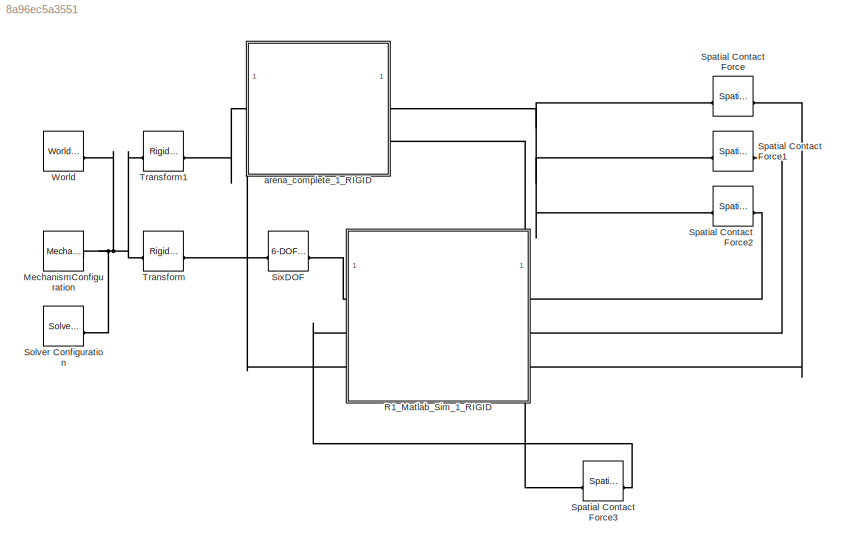
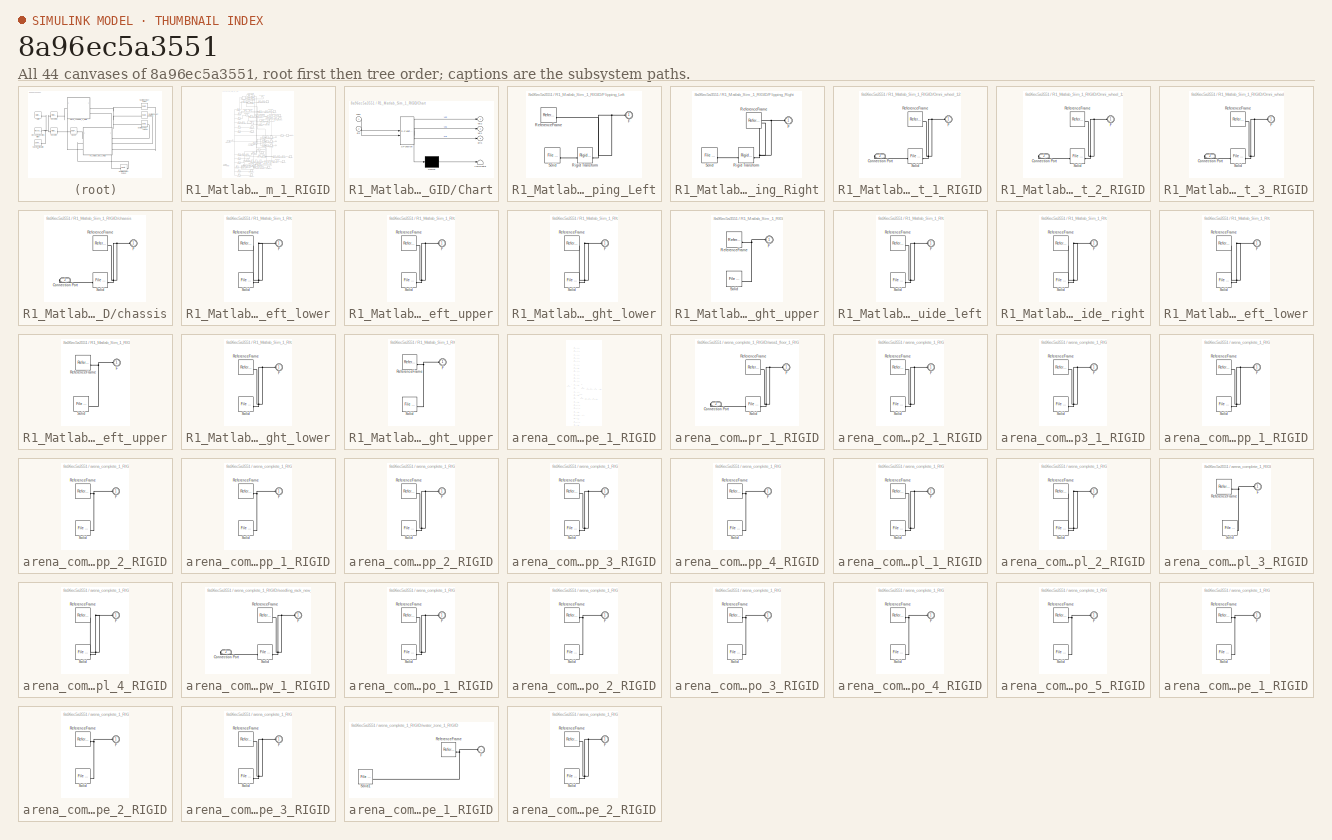
[diagram: thumbnail index - all 44 canvases of the model, root first then tree order]
MODEL slx_8a96ec5a3551
KIND model
CONFIG AbsTol = auto
CONFIG EnableMultiTasking = off
CONFIG FixedStep = auto
CONFIG MaxStep = auto
CONFIG MinStep = auto
CONFIG RelTol = 1e-3
CONFIG SampleTimeConstraint = Unconstrained
CONFIG SolverName = VariableStepAuto
CONFIG StartTime = 0.0
CONFIG StopTime = 10.0
WORKSPACE source: external: MATLAB File  (data not in archive)
BLOCK [Reference] MechanismConfiguration  REF=sm_lib/Utilities/Mechanism
Configuration
  SourceBlock = sm_lib/Utilities/Mechanism\nConfiguration
  SourceType = Mechanism\nConfiguration
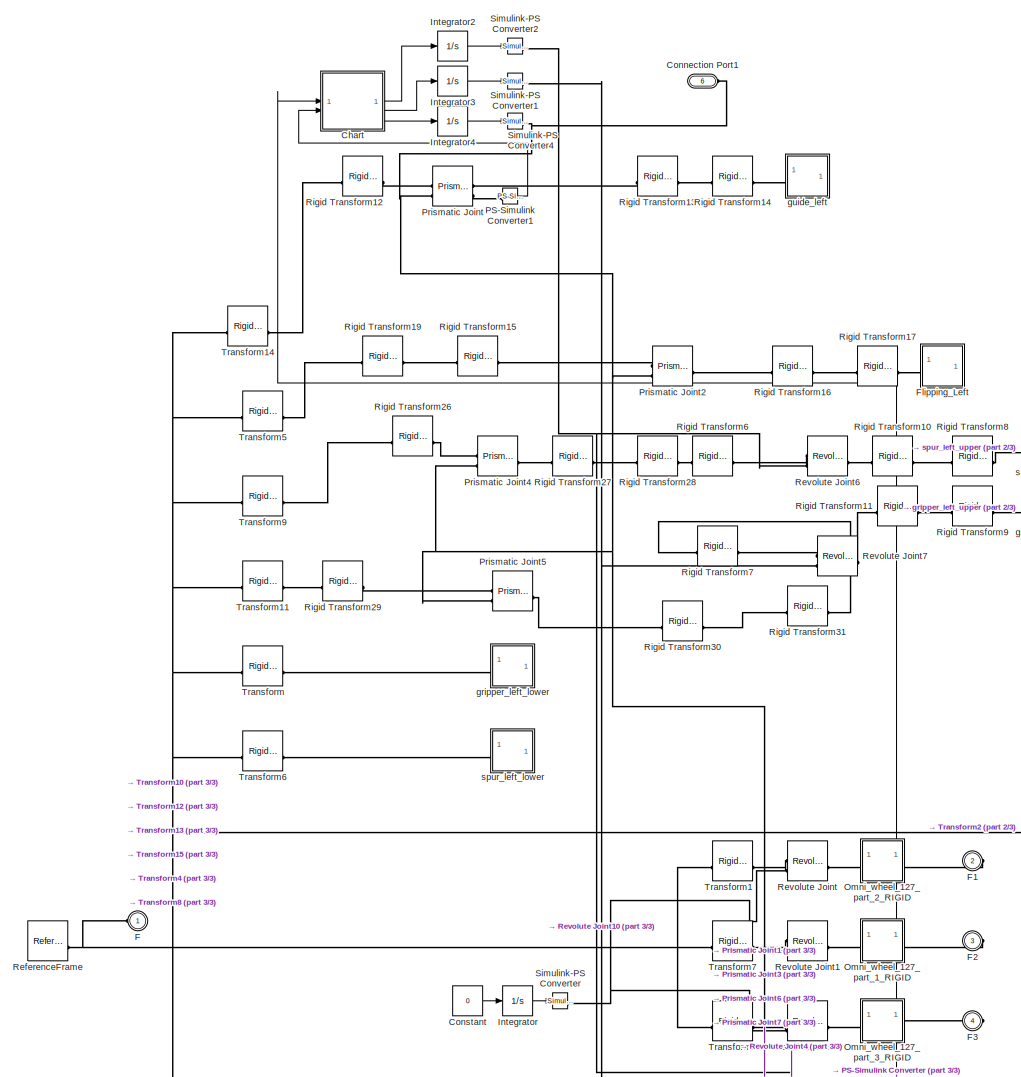
[diagram: R1_Matlab_Sim_1_RIGID - part 1/3, full width, middle band]
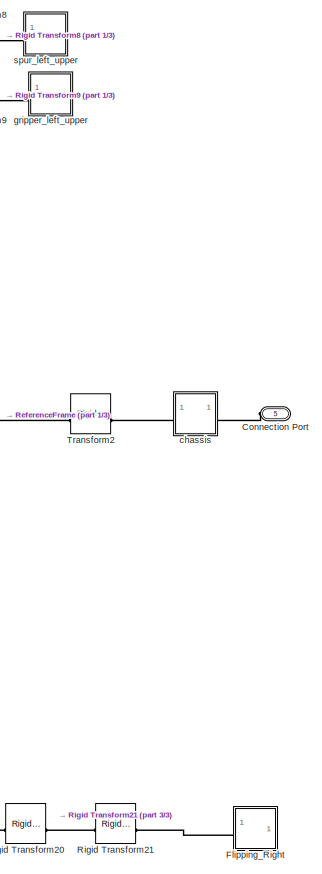
[diagram: R1_Matlab_Sim_1_RIGID - part 2/3, middle right region]
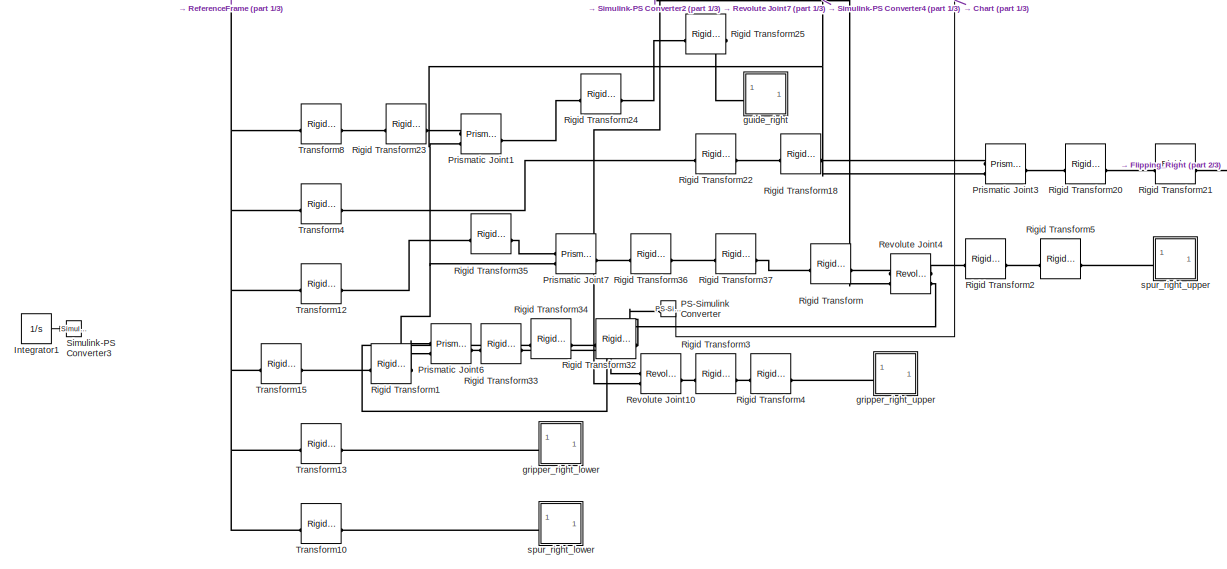
[diagram: R1_Matlab_Sim_1_RIGID - part 3/3, full width, bottom band]
BLOCK [SubSystem] R1_Matlab_Sim_1_RIGID
BLOCK [SubSystem] R1_Matlab_Sim_1_RIGID/Chart
  ErrorFcn = Stateflow.Translate.translate
  PermitHierarchicalResolution = ExplicitOnly
  SFBlockType = Chart
  TreatAsAtomicUnit = on
BLOCK [Demux] R1_Matlab_Sim_1_RIGID/Chart/ Demux 
  Outputs = 1
BLOCK [S-Function] R1_Matlab_Sim_1_RIGID/Chart/ SFunction 
  EnableBusSupport = on
  FunctionName = sf_sfun
  PortCounts = [2 4]
  SFcnIsStateOwnerBlock = off
  SFunctionDeploymentMode = off
  Tag = Stateflow S-Function 3
BLOCK [Terminator] R1_Matlab_Sim_1_RIGID/Chart/ Terminator 
BLOCK [Inport] R1_Matlab_Sim_1_RIGID/Chart/con1
BLOCK [Inport] R1_Matlab_Sim_1_RIGID/Chart/dis
  Port = 2
BLOCK [Outport] R1_Matlab_Sim_1_RIGID/Chart/pris
  Port = 3
BLOCK [Outport] R1_Matlab_Sim_1_RIGID/Chart/vel1
  Port = 2
BLOCK [Outport] R1_Matlab_Sim_1_RIGID/Chart/vel2
BLOCK [PMIOPort] R1_Matlab_Sim_1_RIGID/Connection Port
  Port = 5
  Side = Left
BLOCK [PMIOPort] R1_Matlab_Sim_1_RIGID/Connection Port1
  Port = 6
  Side = Left
BLOCK [Constant] R1_Matlab_Sim_1_RIGID/Constant
  Value = 0
BLOCK [PMIOPort] R1_Matlab_Sim_1_RIGID/F
  Side = Left
BLOCK [PMIOPort] R1_Matlab_Sim_1_RIGID/F1
  Port = 2
  Side = Right
BLOCK [PMIOPort] R1_Matlab_Sim_1_RIGID/F2
  Port = 3
  Side = Right
BLOCK [PMIOPort] R1_Matlab_Sim_1_RIGID/F3
  Port = 4
  Side = Right
BLOCK [SubSystem] R1_Matlab_Sim_1_RIGID/Flipping_Left
BLOCK [PMIOPort] R1_Matlab_Sim_1_RIGID/Flipping_Left/F
  Side = Left
BLOCK [Reference] R1_Matlab_Sim_1_RIGID/Flipping_Left/ReferenceFrame  REF=sm_lib/Frames and
Transforms/Reference
Frame
  SourceBlock = sm_lib/Frames and\nTransforms/Reference\nFrame
  SourceType = Reference\nFrame
BLOCK [Reference] R1_Matlab_Sim_1_RIGID/Flipping_Left/Rigid Transform  REF=sm_lib/Frames and
Transforms/Rigid
Transform
  SourceBlock = sm_lib/Frames and\nTransforms/Rigid\nTransform
  SourceType = Rigid\nTransform
BLOCK [Reference] R1_Matlab_Sim_1_RIGID/Flipping_Left/Solid  REF=sm_lib/Body Elements/File Solid
  SourceBlock = sm_lib/Body Elements/File Solid
  SourceType = File Solid
BLOCK [SubSystem] R1_Matlab_Sim_1_RIGID/Flipping_Right
BLOCK [PMIOPort] R1_Matlab_Sim_1_RIGID/Flipping_Right/F
  Side = Left
BLOCK [Reference] R1_Matlab_Sim_1_RIGID/Flipping_Right/ReferenceFrame  REF=sm_lib/Frames and
Transforms/Reference
Frame
  SourceBlock = sm_lib/Frames and\nTransforms/Reference\nFrame
  SourceType = Reference\nFrame
BLOCK [Reference] R1_Matlab_Sim_1_RIGID/Flipping_Right/Rigid Transform  REF=sm_lib/Frames and
Transforms/Rigid
Transform
  SourceBlock = sm_lib/Frames and\nTransforms/Rigid\nTransform
  SourceType = Rigid\nTransform
BLOCK [Reference] R1_Matlab_Sim_1_RIGID/Flipping_Right/Solid  REF=sm_lib/Body Elements/File Solid
  SourceBlock = sm_lib/Body Elements/File Solid
  SourceType = File Solid
BLOCK [Integrator] R1_Matlab_Sim_1_RIGID/Integrator
BLOCK [Integrator] R1_Matlab_Sim_1_RIGID/Integrator1
  Commented = on
BLOCK [Integrator] R1_Matlab_Sim_1_RIGID/Integrator2
BLOCK [Integrator] R1_Matlab_Sim_1_RIGID/Integrator3
BLOCK [Integrator] R1_Matlab_Sim_1_RIGID/Integrator4
BLOCK [SubSystem] R1_Matlab_Sim_1_RIGID/Omni_wheel_127_part_1_RIGID
BLOCK [PMIOPort] R1_Matlab_Sim_1_RIGID/Omni_wheel_127_part_1_RIGID/Connection Port
  Port = 2
  Side = Right
BLOCK [PMIOPort] R1_Matlab_Sim_1_RIGID/Omni_wheel_127_part_1_RIGID/F
  Side = Left
BLOCK [Reference] R1_Matlab_Sim_1_RIGID/Omni_wheel_127_part_1_RIGID/ReferenceFrame  REF=sm_lib/Frames and
Transforms/Reference
Frame
  SourceBlock = sm_lib/Frames and\nTransforms/Reference\nFrame
  SourceType = Reference\nFrame
BLOCK [Reference] R1_Matlab_Sim_1_RIGID/Omni_wheel_127_part_1_RIGID/Solid  REF=sm_lib/Body Elements/File Solid
  SourceBlock = sm_lib/Body Elements/File Solid
  SourceType = File Solid
BLOCK [SubSystem] R1_Matlab_Sim_1_RIGID/Omni_wheel_127_part_2_RIGID
BLOCK [PMIOPort] R1_Matlab_Sim_1_RIGID/Omni_wheel_127_part_2_RIGID/Connection Port
  Port = 2
  Side = Right
BLOCK [PMIOPort] R1_Matlab_Sim_1_RIGID/Omni_wheel_127_part_2_RIGID/F
  Side = Left
BLOCK [Reference] R1_Matlab_Sim_1_RIGID/Omni_wheel_127_part_2_RIGID/ReferenceFrame  REF=sm_lib/Frames and
Transforms/Reference
Frame
  SourceBlock = sm_lib/Frames and\nTransforms/Reference\nFrame
  SourceType = Reference\nFrame
BLOCK [Reference] R1_Matlab_Sim_1_RIGID/Omni_wheel_127_part_2_RIGID/Solid  REF=sm_lib/Body Elements/File Solid
  SourceBlock = sm_lib/Body Elements/File Solid
  SourceType = File Solid
BLOCK [SubSystem] R1_Matlab_Sim_1_RIGID/Omni_wheel_127_part_3_RIGID
BLOCK [PMIOPort] R1_Matlab_Sim_1_RIGID/Omni_wheel_127_part_3_RIGID/Connection Port
  Port = 2
  Side = Right
BLOCK [PMIOPort] R1_Matlab_Sim_1_RIGID/Omni_wheel_127_part_3_RIGID/F
  Side = Left
BLOCK [Reference] R1_Matlab_Sim_1_RIGID/Omni_wheel_127_part_3_RIGID/ReferenceFrame  REF=sm_lib/Frames and
Transforms/Reference
Frame
  SourceBlock = sm_lib/Frames and\nTransforms/Reference\nFrame
  SourceType = Reference\nFrame
BLOCK [Reference] R1_Matlab_Sim_1_RIGID/Omni_wheel_127_part_3_RIGID/Solid  REF=sm_lib/Body Elements/File Solid
  SourceBlock = sm_lib/Body Elements/File Solid
  SourceType = File Solid
BLOCK [Reference] R1_Matlab_Sim_1_RIGID/PS-Simulink Converter  REF=nesl_utility/PS-Simulink
Converter
  SourceBlock = nesl_utility/PS-Simulink\nConverter
  SourceType = PS-Simulink\nConverter
BLOCK [Reference] R1_Matlab_Sim_1_RIGID/PS-Simulink Converter1  REF=nesl_utility/PS-Simulink
Converter
  SourceBlock = nesl_utility/PS-Simulink\nConverter
  SourceType = PS-Simulink\nConverter
BLOCK [Reference] R1_Matlab_Sim_1_RIGID/Prismatic Joint  REF=sm_lib/Joints/Prismatic
Joint
  SourceBlock = sm_lib/Joints/Prismatic\nJoint
  SourceType = Prismatic\nJoint
BLOCK [Reference] R1_Matlab_Sim_1_RIGID/Prismatic Joint1  REF=sm_lib/Joints/Prismatic
Joint
  SourceBlock = sm_lib/Joints/Prismatic\nJoint
  SourceType = Prismatic\nJoint
BLOCK [Reference] R1_Matlab_Sim_1_RIGID/Prismatic Joint2  REF=sm_lib/Joints/Prismatic
Joint
  SourceBlock = sm_lib/Joints/Prismatic\nJoint
  SourceType = Prismatic\nJoint
BLOCK [Reference] R1_Matlab_Sim_1_RIGID/Prismatic Joint3  REF=sm_lib/Joints/Prismatic
Joint
  SourceBlock = sm_lib/Joints/Prismatic\nJoint
  SourceType = Prismatic\nJoint
BLOCK [Reference] R1_Matlab_Sim_1_RIGID/Prismatic Joint4  REF=sm_lib/Joints/Prismatic
Joint
  SourceBlock = sm_lib/Joints/Prismatic\nJoint
  SourceType = Prismatic\nJoint
BLOCK [Reference] R1_Matlab_Sim_1_RIGID/Prismatic Joint5  REF=sm_lib/Joints/Prismatic
Joint
  SourceBlock = sm_lib/Joints/Prismatic\nJoint
  SourceType = Prismatic\nJoint
BLOCK [Reference] R1_Matlab_Sim_1_RIGID/Prismatic Joint6  REF=sm_lib/Joints/Prismatic
Joint
  SourceBlock = sm_lib/Joints/Prismatic\nJoint
  SourceType = Prismatic\nJoint
BLOCK [Reference] R1_Matlab_Sim_1_RIGID/Prismatic Joint7  REF=sm_lib/Joints/Prismatic
Joint
  NameLocation = left
  SourceBlock = sm_lib/Joints/Prismatic\nJoint
  SourceType = Prismatic\nJoint
BLOCK [Reference] R1_Matlab_Sim_1_RIGID/ReferenceFrame  REF=sm_lib/Frames and
Transforms/Reference
Frame
  SourceBlock = sm_lib/Frames and\nTransforms/Reference\nFrame
  SourceType = Reference\nFrame
BLOCK [Reference] R1_Matlab_Sim_1_RIGID/Revolute Joint  REF=sm_lib/Joints/Revolute Joint
  SourceBlock = sm_lib/Joints/Revolute Joint
  SourceType = Revolute Joint
BLOCK [Reference] R1_Matlab_Sim_1_RIGID/Revolute Joint1  REF=sm_lib/Joints/Revolute Joint
  SourceBlock = sm_lib/Joints/Revolute Joint
  SourceType = Revolute Joint
BLOCK [Reference] R1_Matlab_Sim_1_RIGID/Revolute Joint10  REF=sm_lib/Joints/Revolute Joint
  SourceBlock = sm_lib/Joints/Revolute Joint
  SourceType = Revolute Joint
BLOCK [Reference] R1_Matlab_Sim_1_RIGID/Revolute Joint2  REF=sm_lib/Joints/Revolute Joint
  SourceBlock = sm_lib/Joints/Revolute Joint
  SourceType = Revolute Joint
BLOCK [Reference] R1_Matlab_Sim_1_RIGID/Revolute Joint4  REF=sm_lib/Joints/Revolute Joint
  SourceBlock = sm_lib/Joints/Revolute Joint
  SourceType = Revolute Joint
BLOCK [Reference] R1_Matlab_Sim_1_RIGID/Revolute Joint6  REF=sm_lib/Joints/Revolute Joint
  SourceBlock = sm_lib/Joints/Revolute Joint
  SourceType = Revolute Joint
BLOCK [Reference] R1_Matlab_Sim_1_RIGID/Revolute Joint7  REF=sm_lib/Joints/Revolute Joint
  SourceBlock = sm_lib/Joints/Revolute Joint
  SourceType = Revolute Joint
BLOCK [Reference] R1_Matlab_Sim_1_RIGID/Rigid Transform  REF=sm_lib/Frames and
Transforms/Rigid
Transform
  SourceBlock = sm_lib/Frames and\nTransforms/Rigid\nTransform
  SourceType = Rigid\nTransform
BLOCK [Reference] R1_Matlab_Sim_1_RIGID/Rigid Transform1  REF=sm_lib/Frames and
Transforms/Rigid
Transform
  SourceBlock = sm_lib/Frames and\nTransforms/Rigid\nTransform
  SourceType = Rigid\nTransform
BLOCK [Reference] R1_Matlab_Sim_1_RIGID/Rigid Transform10  REF=sm_lib/Frames and
Transforms/Rigid
Transform
  SourceBlock = sm_lib/Frames and\nTransforms/Rigid\nTransform
  SourceType = Rigid\nTransform
BLOCK [Reference] R1_Matlab_Sim_1_RIGID/Rigid Transform11  REF=sm_lib/Frames and
Transforms/Rigid
Transform
  SourceBlock = sm_lib/Frames and\nTransforms/Rigid\nTransform
  SourceType = Rigid\nTransform
BLOCK [Reference] R1_Matlab_Sim_1_RIGID/Rigid Transform12  REF=sm_lib/Frames and
Transforms/Rigid
Transform
  SourceBlock = sm_lib/Frames and\nTransforms/Rigid\nTransform
  SourceType = Rigid\nTransform
BLOCK [Reference] R1_Matlab_Sim_1_RIGID/Rigid Transform13  REF=sm_lib/Frames and
Transforms/Rigid
Transform
  SourceBlock = sm_lib/Frames and\nTransforms/Rigid\nTransform
  SourceType = Rigid\nTransform
BLOCK [Reference] R1_Matlab_Sim_1_RIGID/Rigid Transform14  REF=sm_lib/Frames and
Transforms/Rigid
Transform
  SourceBlock = sm_lib/Frames and\nTransforms/Rigid\nTransform
  SourceType = Rigid\nTransform
BLOCK [Reference] R1_Matlab_Sim_1_RIGID/Rigid Transform15  REF=sm_lib/Frames and
Transforms/Rigid
Transform
  SourceBlock = sm_lib/Frames and\nTransforms/Rigid\nTransform
  SourceType = Rigid\nTransform
BLOCK [Reference] R1_Matlab_Sim_1_RIGID/Rigid Transform16  REF=sm_lib/Frames and
Transforms/Rigid
Transform
  SourceBlock = sm_lib/Frames and\nTransforms/Rigid\nTransform
  SourceType = Rigid\nTransform
BLOCK [Reference] R1_Matlab_Sim_1_RIGID/Rigid Transform17  REF=sm_lib/Frames and
Transforms/Rigid
Transform
  SourceBlock = sm_lib/Frames and\nTransforms/Rigid\nTransform
  SourceType = Rigid\nTransform
BLOCK [Reference] R1_Matlab_Sim_1_RIGID/Rigid Transform18  REF=sm_lib/Frames and
Transforms/Rigid
Transform
  SourceBlock = sm_lib/Frames and\nTransforms/Rigid\nTransform
  SourceType = Rigid\nTransform
BLOCK [Reference] R1_Matlab_Sim_1_RIGID/Rigid Transform19  REF=sm_lib/Frames and
Transforms/Rigid
Transform
  SourceBlock = sm_lib/Frames and\nTransforms/Rigid\nTransform
  SourceType = Rigid\nTransform
BLOCK [Reference] R1_Matlab_Sim_1_RIGID/Rigid Transform2  REF=sm_lib/Frames and
Transforms/Rigid
Transform
  SourceBlock = sm_lib/Frames and\nTransforms/Rigid\nTransform
  SourceType = Rigid\nTransform
BLOCK [Reference] R1_Matlab_Sim_1_RIGID/Rigid Transform20  REF=sm_lib/Frames and
Transforms/Rigid
Transform
  SourceBlock = sm_lib/Frames and\nTransforms/Rigid\nTransform
  SourceType = Rigid\nTransform
BLOCK [Reference] R1_Matlab_Sim_1_RIGID/Rigid Transform21  REF=sm_lib/Frames and
Transforms/Rigid
Transform
  SourceBlock = sm_lib/Frames and\nTransforms/Rigid\nTransform
  SourceType = Rigid\nTransform
BLOCK [Reference] R1_Matlab_Sim_1_RIGID/Rigid Transform22  REF=sm_lib/Frames and
Transforms/Rigid
Transform
  SourceBlock = sm_lib/Frames and\nTransforms/Rigid\nTransform
  SourceType = Rigid\nTransform
BLOCK [Reference] R1_Matlab_Sim_1_RIGID/Rigid Transform23  REF=sm_lib/Frames and
Transforms/Rigid
Transform
  SourceBlock = sm_lib/Frames and\nTransforms/Rigid\nTransform
  SourceType = Rigid\nTransform
BLOCK [Reference] R1_Matlab_Sim_1_RIGID/Rigid Transform24  REF=sm_lib/Frames and
Transforms/Rigid
Transform
  SourceBlock = sm_lib/Frames and\nTransforms/Rigid\nTransform
  SourceType = Rigid\nTransform
BLOCK [Reference] R1_Matlab_Sim_1_RIGID/Rigid Transform25  REF=sm_lib/Frames and
Transforms/Rigid
Transform
  SourceBlock = sm_lib/Frames and\nTransforms/Rigid\nTransform
  SourceType = Rigid\nTransform
BLOCK [Reference] R1_Matlab_Sim_1_RIGID/Rigid Transform26  REF=sm_lib/Frames and
Transforms/Rigid
Transform
  SourceBlock = sm_lib/Frames and\nTransforms/Rigid\nTransform
  SourceType = Rigid\nTransform
BLOCK [Reference] R1_Matlab_Sim_1_RIGID/Rigid Transform27  REF=sm_lib/Frames and
Transforms/Rigid
Transform
  SourceBlock = sm_lib/Frames and\nTransforms/Rigid\nTransform
  SourceType = Rigid\nTransform
BLOCK [Reference] R1_Matlab_Sim_1_RIGID/Rigid Transform28  REF=sm_lib/Frames and
Transforms/Rigid
Transform
  SourceBlock = sm_lib/Frames and\nTransforms/Rigid\nTransform
  SourceType = Rigid\nTransform
BLOCK [Reference] R1_Matlab_Sim_1_RIGID/Rigid Transform29  REF=sm_lib/Frames and
Transforms/Rigid
Transform
  SourceBlock = sm_lib/Frames and\nTransforms/Rigid\nTransform
  SourceType = Rigid\nTransform
BLOCK [Reference] R1_Matlab_Sim_1_RIGID/Rigid Transform3  REF=sm_lib/Frames and
Transforms/Rigid
Transform
  SourceBlock = sm_lib/Frames and\nTransforms/Rigid\nTransform
  SourceType = Rigid\nTransform
BLOCK [Reference] R1_Matlab_Sim_1_RIGID/Rigid Transform30  REF=sm_lib/Frames and
Transforms/Rigid
Transform
  SourceBlock = sm_lib/Frames and\nTransforms/Rigid\nTransform
  SourceType = Rigid\nTransform
BLOCK [Reference] R1_Matlab_Sim_1_RIGID/Rigid Transform31  REF=sm_lib/Frames and
Transforms/Rigid
Transform
  SourceBlock = sm_lib/Frames and\nTransforms/Rigid\nTransform
  SourceType = Rigid\nTransform
BLOCK [Reference] R1_Matlab_Sim_1_RIGID/Rigid Transform32  REF=sm_lib/Frames and
Transforms/Rigid
Transform
  SourceBlock = sm_lib/Frames and\nTransforms/Rigid\nTransform
  SourceType = Rigid\nTransform
BLOCK [Reference] R1_Matlab_Sim_1_RIGID/Rigid Transform33  REF=sm_lib/Frames and
Transforms/Rigid
Transform
  SourceBlock = sm_lib/Frames and\nTransforms/Rigid\nTransform
  SourceType = Rigid\nTransform
BLOCK [Reference] R1_Matlab_Sim_1_RIGID/Rigid Transform34  REF=sm_lib/Frames and
Transforms/Rigid
Transform
  SourceBlock = sm_lib/Frames and\nTransforms/Rigid\nTransform
  SourceType = Rigid\nTransform
BLOCK [Reference] R1_Matlab_Sim_1_RIGID/Rigid Transform35  REF=sm_lib/Frames and
Transforms/Rigid
Transform
  SourceBlock = sm_lib/Frames and\nTransforms/Rigid\nTransform
  SourceType = Rigid\nTransform
BLOCK [Reference] R1_Matlab_Sim_1_RIGID/Rigid Transform36  REF=sm_lib/Frames and
Transforms/Rigid
Transform
  SourceBlock = sm_lib/Frames and\nTransforms/Rigid\nTransform
  SourceType = Rigid\nTransform
BLOCK [Reference] R1_Matlab_Sim_1_RIGID/Rigid Transform37  REF=sm_lib/Frames and
Transforms/Rigid
Transform
  SourceBlock = sm_lib/Frames and\nTransforms/Rigid\nTransform
  SourceType = Rigid\nTransform
BLOCK [Reference] R1_Matlab_Sim_1_RIGID/Rigid Transform4  REF=sm_lib/Frames and
Transforms/Rigid
Transform
  SourceBlock = sm_lib/Frames and\nTransforms/Rigid\nTransform
  SourceType = Rigid\nTransform
BLOCK [Reference] R1_Matlab_Sim_1_RIGID/Rigid Transform5  REF=sm_lib/Frames and
Transforms/Rigid
Transform
  SourceBlock = sm_lib/Frames and\nTransforms/Rigid\nTransform
  SourceType = Rigid\nTransform
BLOCK [Reference] R1_Matlab_Sim_1_RIGID/Rigid Transform6  REF=sm_lib/Frames and
Transforms/Rigid
Transform
  SourceBlock = sm_lib/Frames and\nTransforms/Rigid\nTransform
  SourceType = Rigid\nTransform
BLOCK [Reference] R1_Matlab_Sim_1_RIGID/Rigid Transform7  REF=sm_lib/Frames and
Transforms/Rigid
Transform
  SourceBlock = sm_lib/Frames and\nTransforms/Rigid\nTransform
  SourceType = Rigid\nTransform
BLOCK [Reference] R1_Matlab_Sim_1_RIGID/Rigid Transform8  REF=sm_lib/Frames and
Transforms/Rigid
Transform
  SourceBlock = sm_lib/Frames and\nTransforms/Rigid\nTransform
  SourceType = Rigid\nTransform
BLOCK [Reference] R1_Matlab_Sim_1_RIGID/Rigid Transform9  REF=sm_lib/Frames and
Transforms/Rigid
Transform
  SourceBlock = sm_lib/Frames and\nTransforms/Rigid\nTransform
  SourceType = Rigid\nTransform
BLOCK [Reference] R1_Matlab_Sim_1_RIGID/Simulink-PS Converter  REF=nesl_utility/Simulink-PS
Converter
  SourceBlock = nesl_utility/Simulink-PS\nConverter
  SourceType = Simulink-PS\nConverter
BLOCK [Reference] R1_Matlab_Sim_1_RIGID/Simulink-PS Converter1  REF=nesl_utility/Simulink-PS
Converter
  SourceBlock = nesl_utility/Simulink-PS\nConverter
  SourceType = Simulink-PS\nConverter
BLOCK [Reference] R1_Matlab_Sim_1_RIGID/Simulink-PS Converter2  REF=nesl_utility/Simulink-PS
Converter
  SourceBlock = nesl_utility/Simulink-PS\nConverter
  SourceType = Simulink-PS\nConverter
BLOCK [Reference] R1_Matlab_Sim_1_RIGID/Simulink-PS Converter3  REF=nesl_utility/Simulink-PS
Converter
  Commented = on
  SourceBlock = nesl_utility/Simulink-PS\nConverter
  SourceType = Simulink-PS\nConverter
BLOCK [Reference] R1_Matlab_Sim_1_RIGID/Simulink-PS Converter4  REF=nesl_utility/Simulink-PS
Converter
  SourceBlock = nesl_utility/Simulink-PS\nConverter
  SourceType = Simulink-PS\nConverter
BLOCK [Reference] R1_Matlab_Sim_1_RIGID/Transform  REF=sm_lib/Frames and
Transforms/Rigid
Transform
  SourceBlock = sm_lib/Frames and\nTransforms/Rigid\nTransform
  SourceType = Rigid\nTransform
BLOCK [Reference] R1_Matlab_Sim_1_RIGID/Transform1  REF=sm_lib/Frames and
Transforms/Rigid
Transform
  SourceBlock = sm_lib/Frames and\nTransforms/Rigid\nTransform
  SourceType = Rigid\nTransform
BLOCK [Reference] R1_Matlab_Sim_1_RIGID/Transform10  REF=sm_lib/Frames and
Transforms/Rigid
Transform
  SourceBlock = sm_lib/Frames and\nTransforms/Rigid\nTransform
  SourceType = Rigid\nTransform
BLOCK [Reference] R1_Matlab_Sim_1_RIGID/Transform11  REF=sm_lib/Frames and
Transforms/Rigid
Transform
  SourceBlock = sm_lib/Frames and\nTransforms/Rigid\nTransform
  SourceType = Rigid\nTransform
BLOCK [Reference] R1_Matlab_Sim_1_RIGID/Transform12  REF=sm_lib/Frames and
Transforms/Rigid
Transform
  SourceBlock = sm_lib/Frames and\nTransforms/Rigid\nTransform
  SourceType = Rigid\nTransform
BLOCK [Reference] R1_Matlab_Sim_1_RIGID/Transform13  REF=sm_lib/Frames and
Transforms/Rigid
Transform
  SourceBlock = sm_lib/Frames and\nTransforms/Rigid\nTransform
  SourceType = Rigid\nTransform
BLOCK [Reference] R1_Matlab_Sim_1_RIGID/Transform14  REF=sm_lib/Frames and
Transforms/Rigid
Transform
  SourceBlock = sm_lib/Frames and\nTransforms/Rigid\nTransform
  SourceType = Rigid\nTransform
BLOCK [Reference] R1_Matlab_Sim_1_RIGID/Transform15  REF=sm_lib/Frames and
Transforms/Rigid
Transform
  SourceBlock = sm_lib/Frames and\nTransforms/Rigid\nTransform
  SourceType = Rigid\nTransform
BLOCK [Reference] R1_Matlab_Sim_1_RIGID/Transform2  REF=sm_lib/Frames and
Transforms/Rigid
Transform
  SourceBlock = sm_lib/Frames and\nTransforms/Rigid\nTransform
  SourceType = Rigid\nTransform
BLOCK [Reference] R1_Matlab_Sim_1_RIGID/Transform3  REF=sm_lib/Frames and
Transforms/Rigid
Transform
  SourceBlock = sm_lib/Frames and\nTransforms/Rigid\nTransform
  SourceType = Rigid\nTransform
BLOCK [Reference] R1_Matlab_Sim_1_RIGID/Transform4  REF=sm_lib/Frames and
Transforms/Rigid
Transform
  SourceBlock = sm_lib/Frames and\nTransforms/Rigid\nTransform
  SourceType = Rigid\nTransform
BLOCK [Reference] R1_Matlab_Sim_1_RIGID/Transform5  REF=sm_lib/Frames and
Transforms/Rigid
Transform
  SourceBlock = sm_lib/Frames and\nTransforms/Rigid\nTransform
  SourceType = Rigid\nTransform
BLOCK [Reference] R1_Matlab_Sim_1_RIGID/Transform6  REF=sm_lib/Frames and
Transforms/Rigid
Transform
  SourceBlock = sm_lib/Frames and\nTransforms/Rigid\nTransform
  SourceType = Rigid\nTransform
BLOCK [Reference] R1_Matlab_Sim_1_RIGID/Transform7  REF=sm_lib/Frames and
Transforms/Rigid
Transform
  SourceBlock = sm_lib/Frames and\nTransforms/Rigid\nTransform
  SourceType = Rigid\nTransform
BLOCK [Reference] R1_Matlab_Sim_1_RIGID/Transform8  REF=sm_lib/Frames and
Transforms/Rigid
Transform
  SourceBlock = sm_lib/Frames and\nTransforms/Rigid\nTransform
  SourceType = Rigid\nTransform
BLOCK [Reference] R1_Matlab_Sim_1_RIGID/Transform9  REF=sm_lib/Frames and
Transforms/Rigid
Transform
  SourceBlock = sm_lib/Frames and\nTransforms/Rigid\nTransform
  SourceType = Rigid\nTransform
BLOCK [SubSystem] R1_Matlab_Sim_1_RIGID/chassis
BLOCK [PMIOPort] R1_Matlab_Sim_1_RIGID/chassis/Connection Port
  Port = 2
  Side = Right
BLOCK [PMIOPort] R1_Matlab_Sim_1_RIGID/chassis/F
  Side = Left
BLOCK [Reference] R1_Matlab_Sim_1_RIGID/chassis/ReferenceFrame  REF=sm_lib/Frames and
Transforms/Reference
Frame
  SourceBlock = sm_lib/Frames and\nTransforms/Reference\nFrame
  SourceType = Reference\nFrame
BLOCK [Reference] R1_Matlab_Sim_1_RIGID/chassis/Solid  REF=sm_lib/Body Elements/File Solid
  SourceBlock = sm_lib/Body Elements/File Solid
  SourceType = File Solid
BLOCK [SubSystem] R1_Matlab_Sim_1_RIGID/gripper_left_lower
BLOCK [PMIOPort] R1_Matlab_Sim_1_RIGID/gripper_left_lower/F
  Side = Left
BLOCK [Reference] R1_Matlab_Sim_1_RIGID/gripper_left_lower/ReferenceFrame  REF=sm_lib/Frames and
Transforms/Reference
Frame
  SourceBlock = sm_lib/Frames and\nTransforms/Reference\nFrame
  SourceType = Reference\nFrame
BLOCK [Reference] R1_Matlab_Sim_1_RIGID/gripper_left_lower/Solid  REF=sm_lib/Body Elements/File Solid
  SourceBlock = sm_lib/Body Elements/File Solid
  SourceType = File Solid
BLOCK [SubSystem] R1_Matlab_Sim_1_RIGID/gripper_left_upper
BLOCK [PMIOPort] R1_Matlab_Sim_1_RIGID/gripper_left_upper/F
  Side = Left
BLOCK [Reference] R1_Matlab_Sim_1_RIGID/gripper_left_upper/ReferenceFrame  REF=sm_lib/Frames and
Transforms/Reference
Frame
  SourceBlock = sm_lib/Frames and\nTransforms/Reference\nFrame
  SourceType = Reference\nFrame
BLOCK [Reference] R1_Matlab_Sim_1_RIGID/gripper_left_upper/Solid  REF=sm_lib/Body Elements/File Solid
  SourceBlock = sm_lib/Body Elements/File Solid
  SourceType = File Solid
BLOCK [SubSystem] R1_Matlab_Sim_1_RIGID/gripper_right_lower
BLOCK [PMIOPort] R1_Matlab_Sim_1_RIGID/gripper_right_lower/F
  Side = Left
BLOCK [Reference] R1_Matlab_Sim_1_RIGID/gripper_right_lower/ReferenceFrame  REF=sm_lib/Frames and
Transforms/Reference
Frame
  SourceBlock = sm_lib/Frames and\nTransforms/Reference\nFrame
  SourceType = Reference\nFrame
BLOCK [Reference] R1_Matlab_Sim_1_RIGID/gripper_right_lower/Solid  REF=sm_lib/Body Elements/File Solid
  SourceBlock = sm_lib/Body Elements/File Solid
  SourceType = File Solid
BLOCK [SubSystem] R1_Matlab_Sim_1_RIGID/gripper_right_upper
BLOCK [PMIOPort] R1_Matlab_Sim_1_RIGID/gripper_right_upper/F
  Side = Left
BLOCK [Reference] R1_Matlab_Sim_1_RIGID/gripper_right_upper/ReferenceFrame  REF=sm_lib/Frames and
Transforms/Reference
Frame
  SourceBlock = sm_lib/Frames and\nTransforms/Reference\nFrame
  SourceType = Reference\nFrame
BLOCK [Reference] R1_Matlab_Sim_1_RIGID/gripper_right_upper/Solid  REF=sm_lib/Body Elements/File Solid
  SourceBlock = sm_lib/Body Elements/File Solid
  SourceType = File Solid
BLOCK [SubSystem] R1_Matlab_Sim_1_RIGID/guide_left
BLOCK [PMIOPort] R1_Matlab_Sim_1_RIGID/guide_left/F
  Side = Left
BLOCK [Reference] R1_Matlab_Sim_1_RIGID/guide_left/ReferenceFrame  REF=sm_lib/Frames and
Transforms/Reference
Frame
  SourceBlock = sm_lib/Frames and\nTransforms/Reference\nFrame
  SourceType = Reference\nFrame
BLOCK [Reference] R1_Matlab_Sim_1_RIGID/guide_left/Solid  REF=sm_lib/Body Elements/File Solid
  SourceBlock = sm_lib/Body Elements/File Solid
  SourceType = File Solid
BLOCK [SubSystem] R1_Matlab_Sim_1_RIGID/guide_right
BLOCK [PMIOPort] R1_Matlab_Sim_1_RIGID/guide_right/F
  Side = Left
BLOCK [Reference] R1_Matlab_Sim_1_RIGID/guide_right/ReferenceFrame  REF=sm_lib/Frames and
Transforms/Reference
Frame
  SourceBlock = sm_lib/Frames and\nTransforms/Reference\nFrame
  SourceType = Reference\nFrame
BLOCK [Reference] R1_Matlab_Sim_1_RIGID/guide_right/Solid  REF=sm_lib/Body Elements/File Solid
  SourceBlock = sm_lib/Body Elements/File Solid
  SourceType = File Solid
BLOCK [SubSystem] R1_Matlab_Sim_1_RIGID/spur_left_lower
BLOCK [PMIOPort] R1_Matlab_Sim_1_RIGID/spur_left_lower/F
  Side = Left
BLOCK [Reference] R1_Matlab_Sim_1_RIGID/spur_left_lower/ReferenceFrame  REF=sm_lib/Frames and
Transforms/Reference
Frame
  SourceBlock = sm_lib/Frames and\nTransforms/Reference\nFrame
  SourceType = Reference\nFrame
BLOCK [Reference] R1_Matlab_Sim_1_RIGID/spur_left_lower/Solid  REF=sm_lib/Body Elements/File Solid
  SourceBlock = sm_lib/Body Elements/File Solid
  SourceType = File Solid
BLOCK [SubSystem] R1_Matlab_Sim_1_RIGID/spur_left_upper
BLOCK [PMIOPort] R1_Matlab_Sim_1_RIGID/spur_left_upper/F
  Side = Left
BLOCK [Reference] R1_Matlab_Sim_1_RIGID/spur_left_upper/ReferenceFrame  REF=sm_lib/Frames and
Transforms/Reference
Frame
  SourceBlock = sm_lib/Frames and\nTransforms/Reference\nFrame
  SourceType = Reference\nFrame
BLOCK [Reference] R1_Matlab_Sim_1_RIGID/spur_left_upper/Solid  REF=sm_lib/Body Elements/File Solid
  SourceBlock = sm_lib/Body Elements/File Solid
  SourceType = File Solid
BLOCK [SubSystem] R1_Matlab_Sim_1_RIGID/spur_right_lower
BLOCK [PMIOPort] R1_Matlab_Sim_1_RIGID/spur_right_lower/F
  Side = Left
BLOCK [Reference] R1_Matlab_Sim_1_RIGID/spur_right_lower/ReferenceFrame  REF=sm_lib/Frames and
Transforms/Reference
Frame
  SourceBlock = sm_lib/Frames and\nTransforms/Reference\nFrame
  SourceType = Reference\nFrame
BLOCK [Reference] R1_Matlab_Sim_1_RIGID/spur_right_lower/Solid  REF=sm_lib/Body Elements/File Solid
  SourceBlock = sm_lib/Body Elements/File Solid
  SourceType = File Solid
BLOCK [SubSystem] R1_Matlab_Sim_1_RIGID/spur_right_upper
BLOCK [PMIOPort] R1_Matlab_Sim_1_RIGID/spur_right_upper/F
  Side = Left
BLOCK [Reference] R1_Matlab_Sim_1_RIGID/spur_right_upper/ReferenceFrame  REF=sm_lib/Frames and
Transforms/Reference
Frame
  SourceBlock = sm_lib/Frames and\nTransforms/Reference\nFrame
  SourceType = Reference\nFrame
BLOCK [Reference] R1_Matlab_Sim_1_RIGID/spur_right_upper/Solid  REF=sm_lib/Body Elements/File Solid
  SourceBlock = sm_lib/Body Elements/File Solid
  SourceType = File Solid
BLOCK [Reference] SixDOF  REF=sm_lib/Joints/6-DOF Joint
  SourceBlock = sm_lib/Joints/6-DOF Joint
  SourceType = 6-DOF Joint
BLOCK [Reference] Solver Configuration  REF=nesl_utility/Solver
Configuration
  SourceBlock = nesl_utility/Solver\nConfiguration
  SourceType = Solver\nConfiguration
BLOCK [Reference] Spatial Contact Force  REF=sm_lib/Forces and
Torques/Spatial
Contact Force
  SourceBlock = sm_lib/Forces and\nTorques/Spatial\nContact Force
  SourceType = Spatial\nContact Force
BLOCK [Reference] Spatial Contact Force1  REF=sm_lib/Forces and
Torques/Spatial
Contact Force
  SourceBlock = sm_lib/Forces and\nTorques/Spatial\nContact Force
  SourceType = Spatial\nContact Force
BLOCK [Reference] Spatial Contact Force2  REF=sm_lib/Forces and
Torques/Spatial
Contact Force
  SourceBlock = sm_lib/Forces and\nTorques/Spatial\nContact Force
  SourceType = Spatial\nContact Force
BLOCK [Reference] Spatial Contact Force3  REF=sm_lib/Forces and
Torques/Spatial
Contact Force
  SourceBlock = sm_lib/Forces and\nTorques/Spatial\nContact Force
  SourceType = Spatial\nContact Force
BLOCK [Reference] Transform  REF=sm_lib/Frames and
Transforms/Rigid
Transform
  SourceBlock = sm_lib/Frames and\nTransforms/Rigid\nTransform
  SourceType = Rigid\nTransform
BLOCK [Reference] Transform1  REF=sm_lib/Frames and
Transforms/Rigid
Transform
  SourceBlock = sm_lib/Frames and\nTransforms/Rigid\nTransform
  SourceType = Rigid\nTransform
BLOCK [Reference] World  REF=sm_lib/Frames and
Transforms/World Frame
  SourceBlock = sm_lib/Frames and\nTransforms/World Frame
  SourceType = World Frame
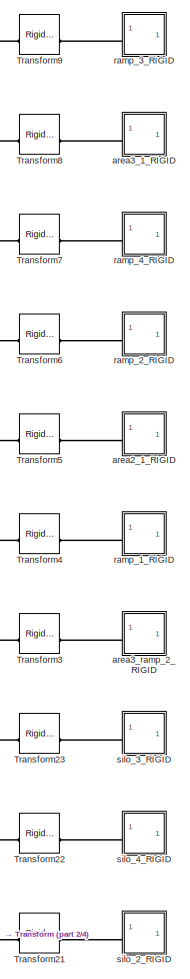
[diagram: arena_complete_1_RIGID - part 1/4, top left region]
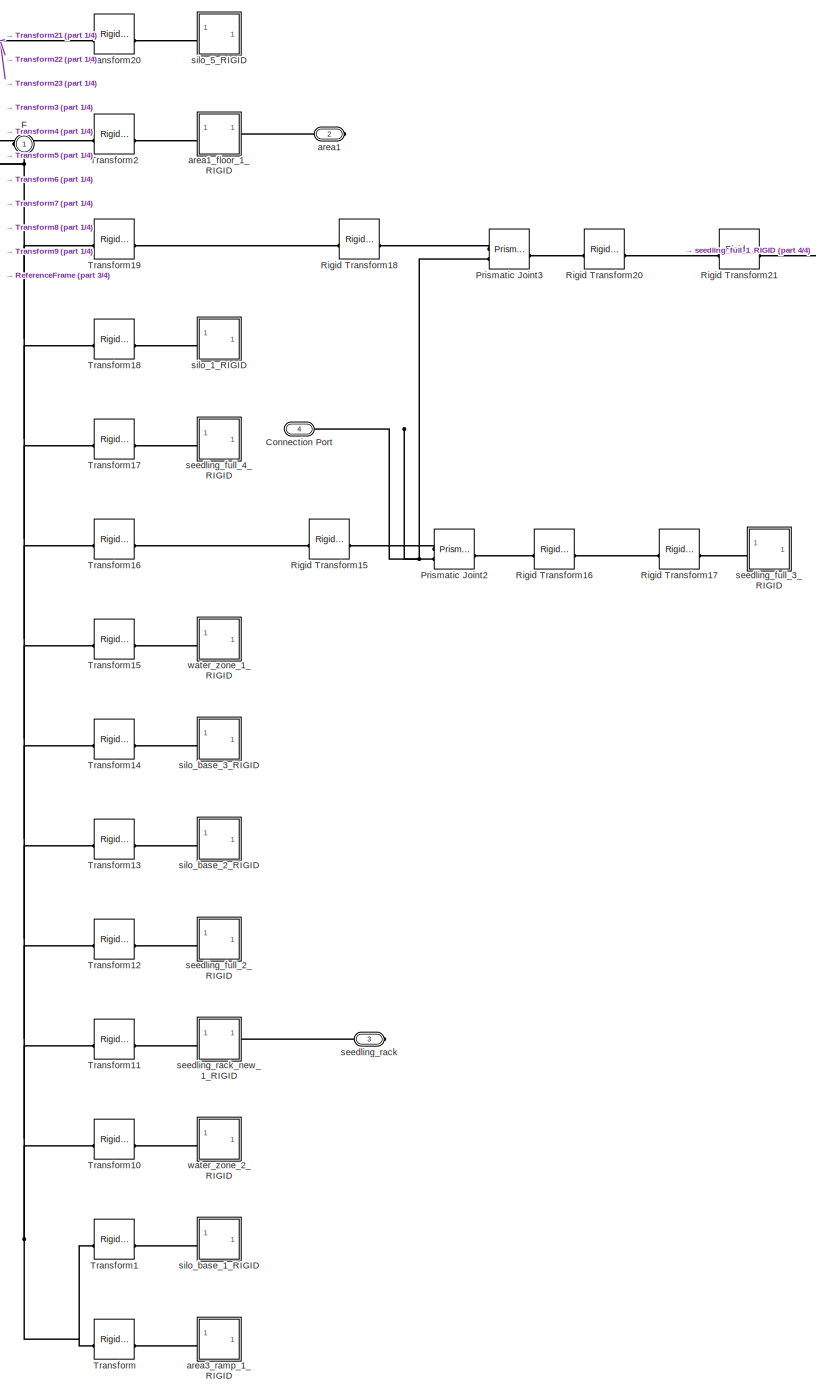
[diagram: arena_complete_1_RIGID - part 2/4, full width, bottom band]
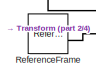
[diagram: arena_complete_1_RIGID - part 3/4, middle left region]
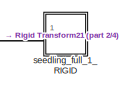
[diagram: arena_complete_1_RIGID - part 4/4, middle right region]
BLOCK [SubSystem] arena_complete_1_RIGID
BLOCK [PMIOPort] arena_complete_1_RIGID/Connection Port
  Port = 4
  Side = Left
BLOCK [PMIOPort] arena_complete_1_RIGID/F
  Side = Left
BLOCK [Reference] arena_complete_1_RIGID/Prismatic Joint2  REF=sm_lib/Joints/Prismatic
Joint
  SourceBlock = sm_lib/Joints/Prismatic\nJoint
  SourceType = Prismatic\nJoint
BLOCK [Reference] arena_complete_1_RIGID/Prismatic Joint3  REF=sm_lib/Joints/Prismatic
Joint
  SourceBlock = sm_lib/Joints/Prismatic\nJoint
  SourceType = Prismatic\nJoint
BLOCK [Reference] arena_complete_1_RIGID/ReferenceFrame  REF=sm_lib/Frames and
Transforms/Reference
Frame
  SourceBlock = sm_lib/Frames and\nTransforms/Reference\nFrame
  SourceType = Reference\nFrame
BLOCK [Reference] arena_complete_1_RIGID/Rigid Transform15  REF=sm_lib/Frames and
Transforms/Rigid
Transform
  SourceBlock = sm_lib/Frames and\nTransforms/Rigid\nTransform
  SourceType = Rigid\nTransform
BLOCK [Reference] arena_complete_1_RIGID/Rigid Transform16  REF=sm_lib/Frames and
Transforms/Rigid
Transform
  SourceBlock = sm_lib/Frames and\nTransforms/Rigid\nTransform
  SourceType = Rigid\nTransform
BLOCK [Reference] arena_complete_1_RIGID/Rigid Transform17  REF=sm_lib/Frames and
Transforms/Rigid
Transform
  SourceBlock = sm_lib/Frames and\nTransforms/Rigid\nTransform
  SourceType = Rigid\nTransform
BLOCK [Reference] arena_complete_1_RIGID/Rigid Transform18  REF=sm_lib/Frames and
Transforms/Rigid
Transform
  SourceBlock = sm_lib/Frames and\nTransforms/Rigid\nTransform
  SourceType = Rigid\nTransform
BLOCK [Reference] arena_complete_1_RIGID/Rigid Transform20  REF=sm_lib/Frames and
Transforms/Rigid
Transform
  SourceBlock = sm_lib/Frames and\nTransforms/Rigid\nTransform
  SourceType = Rigid\nTransform
BLOCK [Reference] arena_complete_1_RIGID/Rigid Transform21  REF=sm_lib/Frames and
Transforms/Rigid
Transform
  SourceBlock = sm_lib/Frames and\nTransforms/Rigid\nTransform
  SourceType = Rigid\nTransform
BLOCK [Reference] arena_complete_1_RIGID/Transform  REF=sm_lib/Frames and
Transforms/Rigid
Transform
  SourceBlock = sm_lib/Frames and\nTransforms/Rigid\nTransform
  SourceType = Rigid\nTransform
BLOCK [Reference] arena_complete_1_RIGID/Transform1  REF=sm_lib/Frames and
Transforms/Rigid
Transform
  SourceBlock = sm_lib/Frames and\nTransforms/Rigid\nTransform
  SourceType = Rigid\nTransform
BLOCK [Reference] arena_complete_1_RIGID/Transform10  REF=sm_lib/Frames and
Transforms/Rigid
Transform
  SourceBlock = sm_lib/Frames and\nTransforms/Rigid\nTransform
  SourceType = Rigid\nTransform
BLOCK [Reference] arena_complete_1_RIGID/Transform11  REF=sm_lib/Frames and
Transforms/Rigid
Transform
  SourceBlock = sm_lib/Frames and\nTransforms/Rigid\nTransform
  SourceType = Rigid\nTransform
BLOCK [Reference] arena_complete_1_RIGID/Transform12  REF=sm_lib/Frames and
Transforms/Rigid
Transform
  SourceBlock = sm_lib/Frames and\nTransforms/Rigid\nTransform
  SourceType = Rigid\nTransform
BLOCK [Reference] arena_complete_1_RIGID/Transform13  REF=sm_lib/Frames and
Transforms/Rigid
Transform
  SourceBlock = sm_lib/Frames and\nTransforms/Rigid\nTransform
  SourceType = Rigid\nTransform
BLOCK [Reference] arena_complete_1_RIGID/Transform14  REF=sm_lib/Frames and
Transforms/Rigid
Transform
  SourceBlock = sm_lib/Frames and\nTransforms/Rigid\nTransform
  SourceType = Rigid\nTransform
BLOCK [Reference] arena_complete_1_RIGID/Transform15  REF=sm_lib/Frames and
Transforms/Rigid
Transform
  SourceBlock = sm_lib/Frames and\nTransforms/Rigid\nTransform
  SourceType = Rigid\nTransform
BLOCK [Reference] arena_complete_1_RIGID/Transform16  REF=sm_lib/Frames and
Transforms/Rigid
Transform
  SourceBlock = sm_lib/Frames and\nTransforms/Rigid\nTransform
  SourceType = Rigid\nTransform
BLOCK [Reference] arena_complete_1_RIGID/Transform17  REF=sm_lib/Frames and
Transforms/Rigid
Transform
  SourceBlock = sm_lib/Frames and\nTransforms/Rigid\nTransform
  SourceType = Rigid\nTransform
BLOCK [Reference] arena_complete_1_RIGID/Transform18  REF=sm_lib/Frames and
Transforms/Rigid
Transform
  SourceBlock = sm_lib/Frames and\nTransforms/Rigid\nTransform
  SourceType = Rigid\nTransform
BLOCK [Reference] arena_complete_1_RIGID/Transform19  REF=sm_lib/Frames and
Transforms/Rigid
Transform
  SourceBlock = sm_lib/Frames and\nTransforms/Rigid\nTransform
  SourceType = Rigid\nTransform
BLOCK [Reference] arena_complete_1_RIGID/Transform2  REF=sm_lib/Frames and
Transforms/Rigid
Transform
  SourceBlock = sm_lib/Frames and\nTransforms/Rigid\nTransform
  SourceType = Rigid\nTransform
BLOCK [Reference] arena_complete_1_RIGID/Transform20  REF=sm_lib/Frames and
Transforms/Rigid
Transform
  SourceBlock = sm_lib/Frames and\nTransforms/Rigid\nTransform
  SourceType = Rigid\nTransform
BLOCK [Reference] arena_complete_1_RIGID/Transform21  REF=sm_lib/Frames and
Transforms/Rigid
Transform
  SourceBlock = sm_lib/Frames and\nTransforms/Rigid\nTransform
  SourceType = Rigid\nTransform
BLOCK [Reference] arena_complete_1_RIGID/Transform22  REF=sm_lib/Frames and
Transforms/Rigid
Transform
  SourceBlock = sm_lib/Frames and\nTransforms/Rigid\nTransform
  SourceType = Rigid\nTransform
BLOCK [Reference] arena_complete_1_RIGID/Transform23  REF=sm_lib/Frames and
Transforms/Rigid
Transform
  SourceBlock = sm_lib/Frames and\nTransforms/Rigid\nTransform
  SourceType = Rigid\nTransform
BLOCK [Reference] arena_complete_1_RIGID/Transform3  REF=sm_lib/Frames and
Transforms/Rigid
Transform
  SourceBlock = sm_lib/Frames and\nTransforms/Rigid\nTransform
  SourceType = Rigid\nTransform
BLOCK [Reference] arena_complete_1_RIGID/Transform4  REF=sm_lib/Frames and
Transforms/Rigid
Transform
  SourceBlock = sm_lib/Frames and\nTransforms/Rigid\nTransform
  SourceType = Rigid\nTransform
BLOCK [Reference] arena_complete_1_RIGID/Transform5  REF=sm_lib/Frames and
Transforms/Rigid
Transform
  SourceBlock = sm_lib/Frames and\nTransforms/Rigid\nTransform
  SourceType = Rigid\nTransform
BLOCK [Reference] arena_complete_1_RIGID/Transform6  REF=sm_lib/Frames and
Transforms/Rigid
Transform
  SourceBlock = sm_lib/Frames and\nTransforms/Rigid\nTransform
  SourceType = Rigid\nTransform
BLOCK [Reference] arena_complete_1_RIGID/Transform7  REF=sm_lib/Frames and
Transforms/Rigid
Transform
  SourceBlock = sm_lib/Frames and\nTransforms/Rigid\nTransform
  SourceType = Rigid\nTransform
BLOCK [Reference] arena_complete_1_RIGID/Transform8  REF=sm_lib/Frames and
Transforms/Rigid
Transform
  SourceBlock = sm_lib/Frames and\nTransforms/Rigid\nTransform
  SourceType = Rigid\nTransform
BLOCK [Reference] arena_complete_1_RIGID/Transform9  REF=sm_lib/Frames and
Transforms/Rigid
Transform
  SourceBlock = sm_lib/Frames and\nTransforms/Rigid\nTransform
  SourceType = Rigid\nTransform
BLOCK [PMIOPort] arena_complete_1_RIGID/area1
  Port = 2
  Side = Right
BLOCK [SubSystem] arena_complete_1_RIGID/area1_floor_1_RIGID
BLOCK [PMIOPort] arena_complete_1_RIGID/area1_floor_1_RIGID/Connection Port
  Port = 2
  Side = Right
BLOCK [PMIOPort] arena_complete_1_RIGID/area1_floor_1_RIGID/F
  Side = Left
BLOCK [Reference] arena_complete_1_RIGID/area1_floor_1_RIGID/ReferenceFrame  REF=sm_lib/Frames and
Transforms/Reference
Frame
  SourceBlock = sm_lib/Frames and\nTransforms/Reference\nFrame
  SourceType = Reference\nFrame
BLOCK [Reference] arena_complete_1_RIGID/area1_floor_1_RIGID/Solid  REF=sm_lib/Body Elements/File Solid
  SourceBlock = sm_lib/Body Elements/File Solid
  SourceType = File Solid
BLOCK [SubSystem] arena_complete_1_RIGID/area2_1_RIGID
BLOCK [PMIOPort] arena_complete_1_RIGID/area2_1_RIGID/F
  Side = Left
BLOCK [Reference] arena_complete_1_RIGID/area2_1_RIGID/ReferenceFrame  REF=sm_lib/Frames and
Transforms/Reference
Frame
  SourceBlock = sm_lib/Frames and\nTransforms/Reference\nFrame
  SourceType = Reference\nFrame
BLOCK [Reference] arena_complete_1_RIGID/area2_1_RIGID/Solid  REF=sm_lib/Body Elements/File Solid
  SourceBlock = sm_lib/Body Elements/File Solid
  SourceType = File Solid
BLOCK [SubSystem] arena_complete_1_RIGID/area3_1_RIGID
BLOCK [PMIOPort] arena_complete_1_RIGID/area3_1_RIGID/F
  Side = Left
BLOCK [Reference] arena_complete_1_RIGID/area3_1_RIGID/ReferenceFrame  REF=sm_lib/Frames and
Transforms/Reference
Frame
  SourceBlock = sm_lib/Frames and\nTransforms/Reference\nFrame
  SourceType = Reference\nFrame
BLOCK [Reference] arena_complete_1_RIGID/area3_1_RIGID/Solid  REF=sm_lib/Body Elements/File Solid
  SourceBlock = sm_lib/Body Elements/File Solid
  SourceType = File Solid
BLOCK [SubSystem] arena_complete_1_RIGID/area3_ramp_1_RIGID
BLOCK [PMIOPort] arena_complete_1_RIGID/area3_ramp_1_RIGID/F
  Side = Left
BLOCK [Reference] arena_complete_1_RIGID/area3_ramp_1_RIGID/ReferenceFrame  REF=sm_lib/Frames and
Transforms/Reference
Frame
  SourceBlock = sm_lib/Frames and\nTransforms/Reference\nFrame
  SourceType = Reference\nFrame
BLOCK [Reference] arena_complete_1_RIGID/area3_ramp_1_RIGID/Solid  REF=sm_lib/Body Elements/File Solid
  SourceBlock = sm_lib/Body Elements/File Solid
  SourceType = File Solid
BLOCK [SubSystem] arena_complete_1_RIGID/area3_ramp_2_RIGID
BLOCK [PMIOPort] arena_complete_1_RIGID/area3_ramp_2_RIGID/F
  Side = Left
BLOCK [Reference] arena_complete_1_RIGID/area3_ramp_2_RIGID/ReferenceFrame  REF=sm_lib/Frames and
Transforms/Reference
Frame
  SourceBlock = sm_lib/Frames and\nTransforms/Reference\nFrame
  SourceType = Reference\nFrame
BLOCK [Reference] arena_complete_1_RIGID/area3_ramp_2_RIGID/Solid  REF=sm_lib/Body Elements/File Solid
  SourceBlock = sm_lib/Body Elements/File Solid
  SourceType = File Solid
BLOCK [SubSystem] arena_complete_1_RIGID/ramp_1_RIGID
BLOCK [PMIOPort] arena_complete_1_RIGID/ramp_1_RIGID/F
  Side = Left
BLOCK [Reference] arena_complete_1_RIGID/ramp_1_RIGID/ReferenceFrame  REF=sm_lib/Frames and
Transforms/Reference
Frame
  SourceBlock = sm_lib/Frames and\nTransforms/Reference\nFrame
  SourceType = Reference\nFrame
BLOCK [Reference] arena_complete_1_RIGID/ramp_1_RIGID/Solid  REF=sm_lib/Body Elements/File Solid
  SourceBlock = sm_lib/Body Elements/File Solid
  SourceType = File Solid
BLOCK [SubSystem] arena_complete_1_RIGID/ramp_2_RIGID
BLOCK [PMIOPort] arena_complete_1_RIGID/ramp_2_RIGID/F
  Side = Left
BLOCK [Reference] arena_complete_1_RIGID/ramp_2_RIGID/ReferenceFrame  REF=sm_lib/Frames and
Transforms/Reference
Frame
  SourceBlock = sm_lib/Frames and\nTransforms/Reference\nFrame
  SourceType = Reference\nFrame
BLOCK [Reference] arena_complete_1_RIGID/ramp_2_RIGID/Solid  REF=sm_lib/Body Elements/File Solid
  SourceBlock = sm_lib/Body Elements/File Solid
  SourceType = File Solid
BLOCK [SubSystem] arena_complete_1_RIGID/ramp_3_RIGID
BLOCK [PMIOPort] arena_complete_1_RIGID/ramp_3_RIGID/F
  Side = Left
BLOCK [Reference] arena_complete_1_RIGID/ramp_3_RIGID/ReferenceFrame  REF=sm_lib/Frames and
Transforms/Reference
Frame
  SourceBlock = sm_lib/Frames and\nTransforms/Reference\nFrame
  SourceType = Reference\nFrame
BLOCK [Reference] arena_complete_1_RIGID/ramp_3_RIGID/Solid  REF=sm_lib/Body Elements/File Solid
  SourceBlock = sm_lib/Body Elements/File Solid
  SourceType = File Solid
BLOCK [SubSystem] arena_complete_1_RIGID/ramp_4_RIGID
BLOCK [PMIOPort] arena_complete_1_RIGID/ramp_4_RIGID/F
  Side = Left
BLOCK [Reference] arena_complete_1_RIGID/ramp_4_RIGID/ReferenceFrame  REF=sm_lib/Frames and
Transforms/Reference
Frame
  SourceBlock = sm_lib/Frames and\nTransforms/Reference\nFrame
  SourceType = Reference\nFrame
BLOCK [Reference] arena_complete_1_RIGID/ramp_4_RIGID/Solid  REF=sm_lib/Body Elements/File Solid
  SourceBlock = sm_lib/Body Elements/File Solid
  SourceType = File Solid
BLOCK [SubSystem] arena_complete_1_RIGID/seedling_full_1_RIGID
BLOCK [PMIOPort] arena_complete_1_RIGID/seedling_full_1_RIGID/F
  Side = Left
BLOCK [Reference] arena_complete_1_RIGID/seedling_full_1_RIGID/ReferenceFrame  REF=sm_lib/Frames and
Transforms/Reference
Frame
  SourceBlock = sm_lib/Frames and\nTransforms/Reference\nFrame
  SourceType = Reference\nFrame
BLOCK [Reference] arena_complete_1_RIGID/seedling_full_1_RIGID/Solid  REF=sm_lib/Body Elements/File Solid
  SourceBlock = sm_lib/Body Elements/File Solid
  SourceType = File Solid
BLOCK [SubSystem] arena_complete_1_RIGID/seedling_full_2_RIGID
BLOCK [PMIOPort] arena_complete_1_RIGID/seedling_full_2_RIGID/F
  Side = Left
BLOCK [Reference] arena_complete_1_RIGID/seedling_full_2_RIGID/ReferenceFrame  REF=sm_lib/Frames and
Transforms/Reference
Frame
  SourceBlock = sm_lib/Frames and\nTransforms/Reference\nFrame
  SourceType = Reference\nFrame
BLOCK [Reference] arena_complete_1_RIGID/seedling_full_2_RIGID/Solid  REF=sm_lib/Body Elements/File Solid
  SourceBlock = sm_lib/Body Elements/File Solid
  SourceType = File Solid
BLOCK [SubSystem] arena_complete_1_RIGID/seedling_full_3_RIGID
BLOCK [PMIOPort] arena_complete_1_RIGID/seedling_full_3_RIGID/F
  Side = Left
BLOCK [Reference] arena_complete_1_RIGID/seedling_full_3_RIGID/ReferenceFrame  REF=sm_lib/Frames and
Transforms/Reference
Frame
  SourceBlock = sm_lib/Frames and\nTransforms/Reference\nFrame
  SourceType = Reference\nFrame
BLOCK [Reference] arena_complete_1_RIGID/seedling_full_3_RIGID/Solid  REF=sm_lib/Body Elements/File Solid
  SourceBlock = sm_lib/Body Elements/File Solid
  SourceType = File Solid
BLOCK [SubSystem] arena_complete_1_RIGID/seedling_full_4_RIGID
BLOCK [PMIOPort] arena_complete_1_RIGID/seedling_full_4_RIGID/F
  Side = Left
BLOCK [Reference] arena_complete_1_RIGID/seedling_full_4_RIGID/ReferenceFrame  REF=sm_lib/Frames and
Transforms/Reference
Frame
  SourceBlock = sm_lib/Frames and\nTransforms/Reference\nFrame
  SourceType = Reference\nFrame
BLOCK [Reference] arena_complete_1_RIGID/seedling_full_4_RIGID/Solid  REF=sm_lib/Body Elements/File Solid
  SourceBlock = sm_lib/Body Elements/File Solid
  SourceType = File Solid
BLOCK [PMIOPort] arena_complete_1_RIGID/seedling_rack
  Port = 3
  Side = Right
BLOCK [SubSystem] arena_complete_1_RIGID/seedling_rack_new_1_RIGID
BLOCK [PMIOPort] arena_complete_1_RIGID/seedling_rack_new_1_RIGID/Connection Port
  Port = 2
  Side = Right
BLOCK [PMIOPort] arena_complete_1_RIGID/seedling_rack_new_1_RIGID/F
  Side = Left
BLOCK [Reference] arena_complete_1_RIGID/seedling_rack_new_1_RIGID/ReferenceFrame  REF=sm_lib/Frames and
Transforms/Reference
Frame
  SourceBlock = sm_lib/Frames and\nTransforms/Reference\nFrame
  SourceType = Reference\nFrame
BLOCK [Reference] arena_complete_1_RIGID/seedling_rack_new_1_RIGID/Solid  REF=sm_lib/Body Elements/File Solid
  SourceBlock = sm_lib/Body Elements/File Solid
  SourceType = File Solid
BLOCK [SubSystem] arena_complete_1_RIGID/silo_1_RIGID
BLOCK [PMIOPort] arena_complete_1_RIGID/silo_1_RIGID/F
  Side = Left
BLOCK [Reference] arena_complete_1_RIGID/silo_1_RIGID/ReferenceFrame  REF=sm_lib/Frames and
Transforms/Reference
Frame
  SourceBlock = sm_lib/Frames and\nTransforms/Reference\nFrame
  SourceType = Reference\nFrame
BLOCK [Reference] arena_complete_1_RIGID/silo_1_RIGID/Solid  REF=sm_lib/Body Elements/File Solid
  SourceBlock = sm_lib/Body Elements/File Solid
  SourceType = File Solid
BLOCK [SubSystem] arena_complete_1_RIGID/silo_2_RIGID
BLOCK [PMIOPort] arena_complete_1_RIGID/silo_2_RIGID/F
  Side = Left
BLOCK [Reference] arena_complete_1_RIGID/silo_2_RIGID/ReferenceFrame  REF=sm_lib/Frames and
Transforms/Reference
Frame
  SourceBlock = sm_lib/Frames and\nTransforms/Reference\nFrame
  SourceType = Reference\nFrame
BLOCK [Reference] arena_complete_1_RIGID/silo_2_RIGID/Solid  REF=sm_lib/Body Elements/File Solid
  SourceBlock = sm_lib/Body Elements/File Solid
  SourceType = File Solid
BLOCK [SubSystem] arena_complete_1_RIGID/silo_3_RIGID
BLOCK [PMIOPort] arena_complete_1_RIGID/silo_3_RIGID/F
  Side = Left
BLOCK [Reference] arena_complete_1_RIGID/silo_3_RIGID/ReferenceFrame  REF=sm_lib/Frames and
Transforms/Reference
Frame
  SourceBlock = sm_lib/Frames and\nTransforms/Reference\nFrame
  SourceType = Reference\nFrame
BLOCK [Reference] arena_complete_1_RIGID/silo_3_RIGID/Solid  REF=sm_lib/Body Elements/File Solid
  SourceBlock = sm_lib/Body Elements/File Solid
  SourceType = File Solid
BLOCK [SubSystem] arena_complete_1_RIGID/silo_4_RIGID
BLOCK [PMIOPort] arena_complete_1_RIGID/silo_4_RIGID/F
  Side = Left
BLOCK [Reference] arena_complete_1_RIGID/silo_4_RIGID/ReferenceFrame  REF=sm_lib/Frames and
Transforms/Reference
Frame
  SourceBlock = sm_lib/Frames and\nTransforms/Reference\nFrame
  SourceType = Reference\nFrame
BLOCK [Reference] arena_complete_1_RIGID/silo_4_RIGID/Solid  REF=sm_lib/Body Elements/File Solid
  SourceBlock = sm_lib/Body Elements/File Solid
  SourceType = File Solid
BLOCK [SubSystem] arena_complete_1_RIGID/silo_5_RIGID
BLOCK [PMIOPort] arena_complete_1_RIGID/silo_5_RIGID/F
  Side = Left
BLOCK [Reference] arena_complete_1_RIGID/silo_5_RIGID/ReferenceFrame  REF=sm_lib/Frames and
Transforms/Reference
Frame
  SourceBlock = sm_lib/Frames and\nTransforms/Reference\nFrame
  SourceType = Reference\nFrame
BLOCK [Reference] arena_complete_1_RIGID/silo_5_RIGID/Solid  REF=sm_lib/Body Elements/File Solid
  SourceBlock = sm_lib/Body Elements/File Solid
  SourceType = File Solid
BLOCK [SubSystem] arena_complete_1_RIGID/silo_base_1_RIGID
BLOCK [PMIOPort] arena_complete_1_RIGID/silo_base_1_RIGID/F
  Side = Left
BLOCK [Reference] arena_complete_1_RIGID/silo_base_1_RIGID/ReferenceFrame  REF=sm_lib/Frames and
Transforms/Reference
Frame
  SourceBlock = sm_lib/Frames and\nTransforms/Reference\nFrame
  SourceType = Reference\nFrame
BLOCK [Reference] arena_complete_1_RIGID/silo_base_1_RIGID/Solid  REF=sm_lib/Body Elements/File Solid
  SourceBlock = sm_lib/Body Elements/File Solid
  SourceType = File Solid
BLOCK [SubSystem] arena_complete_1_RIGID/silo_base_2_RIGID
BLOCK [PMIOPort] arena_complete_1_RIGID/silo_base_2_RIGID/F
  Side = Left
BLOCK [Reference] arena_complete_1_RIGID/silo_base_2_RIGID/ReferenceFrame  REF=sm_lib/Frames and
Transforms/Reference
Frame
  SourceBlock = sm_lib/Frames and\nTransforms/Reference\nFrame
  SourceType = Reference\nFrame
BLOCK [Reference] arena_complete_1_RIGID/silo_base_2_RIGID/Solid  REF=sm_lib/Body Elements/File Solid
  SourceBlock = sm_lib/Body Elements/File Solid
  SourceType = File Solid
BLOCK [SubSystem] arena_complete_1_RIGID/silo_base_3_RIGID
BLOCK [PMIOPort] arena_complete_1_RIGID/silo_base_3_RIGID/F
  Side = Left
BLOCK [Reference] arena_complete_1_RIGID/silo_base_3_RIGID/ReferenceFrame  REF=sm_lib/Frames and
Transforms/Reference
Frame
  SourceBlock = sm_lib/Frames and\nTransforms/Reference\nFrame
  SourceType = Reference\nFrame
BLOCK [Reference] arena_complete_1_RIGID/silo_base_3_RIGID/Solid  REF=sm_lib/Body Elements/File Solid
  SourceBlock = sm_lib/Body Elements/File Solid
  SourceType = File Solid
BLOCK [SubSystem] arena_complete_1_RIGID/water_zone_1_RIGID
BLOCK [PMIOPort] arena_complete_1_RIGID/water_zone_1_RIGID/F
  Side = Left
BLOCK [Reference] arena_complete_1_RIGID/water_zone_1_RIGID/ReferenceFrame  REF=sm_lib/Frames and
Transforms/Reference
Frame
  SourceBlock = sm_lib/Frames and\nTransforms/Reference\nFrame
  SourceType = Reference\nFrame
BLOCK [Reference] arena_complete_1_RIGID/water_zone_1_RIGID/Solid1  REF=sm_lib/Body Elements/File Solid
  SourceBlock = sm_lib/Body Elements/File Solid
  SourceType = File Solid
BLOCK [SubSystem] arena_complete_1_RIGID/water_zone_2_RIGID
BLOCK [PMIOPort] arena_complete_1_RIGID/water_zone_2_RIGID/F
  Side = Left
BLOCK [Reference] arena_complete_1_RIGID/water_zone_2_RIGID/ReferenceFrame  REF=sm_lib/Frames and
Transforms/Reference
Frame
  SourceBlock = sm_lib/Frames and\nTransforms/Reference\nFrame
  SourceType = Reference\nFrame
BLOCK [Reference] arena_complete_1_RIGID/water_zone_2_RIGID/Solid  REF=sm_lib/Body Elements/File Solid
  SourceBlock = sm_lib/Body Elements/File Solid
  SourceType = File Solid
LINE R1_Matlab_Sim_1_RIGID/Chart:1 -> R1_Matlab_Sim_1_RIGID/Integrator2:1
LINE R1_Matlab_Sim_1_RIGID/Chart:2 -> R1_Matlab_Sim_1_RIGID/Integrator3:1
LINE R1_Matlab_Sim_1_RIGID/Chart:3 -> R1_Matlab_Sim_1_RIGID/Integrator4:1
LINE R1_Matlab_Sim_1_RIGID/Constant:1 -> R1_Matlab_Sim_1_RIGID/Integrator:1
LINE R1_Matlab_Sim_1_RIGID/Integrator1:1 -> R1_Matlab_Sim_1_RIGID/Simulink-PS Converter3:1
LINE R1_Matlab_Sim_1_RIGID/Integrator2:1 -> R1_Matlab_Sim_1_RIGID/Simulink-PS Converter2:1
LINE R1_Matlab_Sim_1_RIGID/Integrator3:1 -> R1_Matlab_Sim_1_RIGID/Simulink-PS Converter1:1
LINE R1_Matlab_Sim_1_RIGID/Integrator4:1 -> R1_Matlab_Sim_1_RIGID/Simulink-PS Converter4:1
LINE R1_Matlab_Sim_1_RIGID/Integrator:1 -> R1_Matlab_Sim_1_RIGID/Simulink-PS Converter:1
LINE R1_Matlab_Sim_1_RIGID/PS-Simulink Converter1:1 -> R1_Matlab_Sim_1_RIGID/Chart:2
LINE R1_Matlab_Sim_1_RIGID/PS-Simulink Converter:1 -> R1_Matlab_Sim_1_RIGID/Chart:1
PNET net1: MechanismConfiguration:RConn1 -- Solver Configuration:RConn1 -- Transform1:LConn1 -- Transform:LConn1 -- World:RConn1
PNET net2: R1_Matlab_Sim_1_RIGID/Connection Port1:RConn1 -- R1_Matlab_Sim_1_RIGID/Prismatic Joint1:LConn2 -- R1_Matlab_Sim_1_RIGID/Prismatic Joint2:LConn2 -- R1_Matlab_Sim_1_RIGID/Prismatic Joint3:LConn2 -- R1_Matlab_Sim_1_RIGID/Prismatic Joint4:LConn2 -- R1_Matlab_Sim_1_RIGID/Prismatic Joint5:LConn2 -- R1_Matlab_Sim_1_RIGID/Prismatic Joint6:LConn2 -- R1_Matlab_Sim_1_RIGID/Prismatic Joint7:LConn2 -- R1_Matlab_Sim_1_RIGID/Prismatic Joint:LConn2 -- R1_Matlab_Sim_1_RIGID/Simulink-PS Converter4:RConn1
PLINE R1_Matlab_Sim_1_RIGID/Connection Port:RConn1 -- R1_Matlab_Sim_1_RIGID/chassis:RConn1
PLINE R1_Matlab_Sim_1_RIGID/F1:RConn1 -- R1_Matlab_Sim_1_RIGID/Omni_wheel_127_part_2_RIGID:RConn1
PLINE R1_Matlab_Sim_1_RIGID/F2:RConn1 -- R1_Matlab_Sim_1_RIGID/Omni_wheel_127_part_1_RIGID:RConn1
PLINE R1_Matlab_Sim_1_RIGID/F3:RConn1 -- R1_Matlab_Sim_1_RIGID/Omni_wheel_127_part_3_RIGID:RConn1
PNET net3: R1_Matlab_Sim_1_RIGID/F:RConn1 -- R1_Matlab_Sim_1_RIGID/ReferenceFrame:RConn1 -- R1_Matlab_Sim_1_RIGID/Transform10:LConn1 -- R1_Matlab_Sim_1_RIGID/Transform11:LConn1 -- R1_Matlab_Sim_1_RIGID/Transform12:LConn1 -- R1_Matlab_Sim_1_RIGID/Transform13:LConn1 -- R1_Matlab_Sim_1_RIGID/Transform14:LConn1 -- R1_Matlab_Sim_1_RIGID/Transform15:LConn1 -- R1_Matlab_Sim_1_RIGID/Transform1:LConn1 -- R1_Matlab_Sim_1_RIGID/Transform2:LConn1 -- R1_Matlab_Sim_1_RIGID/Transform3:LConn1 -- R1_Matlab_Sim_1_RIGID/Transform4:LConn1 -- R1_Matlab_Sim_1_RIGID/Transform5:LConn1 -- R1_Matlab_Sim_1_RIGID/Transform6:LConn1 -- R1_Matlab_Sim_1_RIGID/Transform7:LConn1 -- R1_Matlab_Sim_1_RIGID/Transform8:LConn1 -- R1_Matlab_Sim_1_RIGID/Transform9:LConn1 -- R1_Matlab_Sim_1_RIGID/Transform:LConn1
PNET net4: R1_Matlab_Sim_1_RIGID/Flipping_Left/F:RConn1 -- R1_Matlab_Sim_1_RIGID/Flipping_Left/ReferenceFrame:RConn1 -- R1_Matlab_Sim_1_RIGID/Flipping_Left/Rigid Transform:RConn1
PLINE R1_Matlab_Sim_1_RIGID/Flipping_Left/Rigid Transform:LConn1 -- R1_Matlab_Sim_1_RIGID/Flipping_Left/Solid:RConn1
PLINE R1_Matlab_Sim_1_RIGID/Flipping_Left:LConn1 -- R1_Matlab_Sim_1_RIGID/Rigid Transform17:RConn1
PNET net5: R1_Matlab_Sim_1_RIGID/Flipping_Right/F:RConn1 -- R1_Matlab_Sim_1_RIGID/Flipping_Right/ReferenceFrame:RConn1 -- R1_Matlab_Sim_1_RIGID/Flipping_Right/Rigid Transform:RConn1
PLINE R1_Matlab_Sim_1_RIGID/Flipping_Right/Rigid Transform:LConn1 -- R1_Matlab_Sim_1_RIGID/Flipping_Right/Solid:RConn1
PLINE R1_Matlab_Sim_1_RIGID/Flipping_Right:LConn1 -- R1_Matlab_Sim_1_RIGID/Rigid Transform21:RConn1
PLINE R1_Matlab_Sim_1_RIGID/Omni_wheel_127_part_1_RIGID/Connection Port:RConn1 -- R1_Matlab_Sim_1_RIGID/Omni_wheel_127_part_1_RIGID/Solid:LConn1
PNET net6: R1_Matlab_Sim_1_RIGID/Omni_wheel_127_part_1_RIGID/F:RConn1 -- R1_Matlab_Sim_1_RIGID/Omni_wheel_127_part_1_RIGID/ReferenceFrame:RConn1 -- R1_Matlab_Sim_1_RIGID/Omni_wheel_127_part_1_RIGID/Solid:RConn1
PLINE R1_Matlab_Sim_1_RIGID/Omni_wheel_127_part_1_RIGID:LConn1 -- R1_Matlab_Sim_1_RIGID/Revolute Joint1:RConn1
PLINE R1_Matlab_Sim_1_RIGID/Omni_wheel_127_part_2_RIGID/Connection Port:RConn1 -- R1_Matlab_Sim_1_RIGID/Omni_wheel_127_part_2_RIGID/Solid:LConn1
PNET net7: R1_Matlab_Sim_1_RIGID/Omni_wheel_127_part_2_RIGID/F:RConn1 -- R1_Matlab_Sim_1_RIGID/Omni_wheel_127_part_2_RIGID/ReferenceFrame:RConn1 -- R1_Matlab_Sim_1_RIGID/Omni_wheel_127_part_2_RIGID/Solid:RConn1
PLINE R1_Matlab_Sim_1_RIGID/Omni_wheel_127_part_2_RIGID:LConn1 -- R1_Matlab_Sim_1_RIGID/Revolute Joint:RConn1
PLINE R1_Matlab_Sim_1_RIGID/Omni_wheel_127_part_3_RIGID/Connection Port:RConn1 -- R1_Matlab_Sim_1_RIGID/Omni_wheel_127_part_3_RIGID/Solid:LConn1
PNET net8: R1_Matlab_Sim_1_RIGID/Omni_wheel_127_part_3_RIGID/F:RConn1 -- R1_Matlab_Sim_1_RIGID/Omni_wheel_127_part_3_RIGID/ReferenceFrame:RConn1 -- R1_Matlab_Sim_1_RIGID/Omni_wheel_127_part_3_RIGID/Solid:RConn1
PLINE R1_Matlab_Sim_1_RIGID/Omni_wheel_127_part_3_RIGID:LConn1 -- R1_Matlab_Sim_1_RIGID/Revolute Joint2:RConn1
PLINE R1_Matlab_Sim_1_RIGID/PS-Simulink Converter1:LConn1 -- R1_Matlab_Sim_1_RIGID/Prismatic Joint:RConn2
PLINE R1_Matlab_Sim_1_RIGID/PS-Simulink Converter:LConn1 -- R1_Matlab_Sim_1_RIGID/Revolute Joint4:RConn2
PLINE R1_Matlab_Sim_1_RIGID/Prismatic Joint1:LConn1 -- R1_Matlab_Sim_1_RIGID/Rigid Transform23:RConn1
PLINE R1_Matlab_Sim_1_RIGID/Prismatic Joint1:RConn1 -- R1_Matlab_Sim_1_RIGID/Rigid Transform24:LConn1
PLINE R1_Matlab_Sim_1_RIGID/Prismatic Joint2:LConn1 -- R1_Matlab_Sim_1_RIGID/Rigid Transform15:RConn1
PLINE R1_Matlab_Sim_1_RIGID/Prismatic Joint2:RConn1 -- R1_Matlab_Sim_1_RIGID/Rigid Transform16:LConn1
PLINE R1_Matlab_Sim_1_RIGID/Prismatic Joint3:LConn1 -- R1_Matlab_Sim_1_RIGID/Rigid Transform18:RConn1
PLINE R1_Matlab_Sim_1_RIGID/Prismatic Joint3:RConn1 -- R1_Matlab_Sim_1_RIGID/Rigid Transform20:LConn1
PLINE R1_Matlab_Sim_1_RIGID/Prismatic Joint4:LConn1 -- R1_Matlab_Sim_1_RIGID/Rigid Transform26:RConn1
PLINE R1_Matlab_Sim_1_RIGID/Prismatic Joint4:RConn1 -- R1_Matlab_Sim_1_RIGID/Rigid Transform27:LConn1
PLINE R1_Matlab_Sim_1_RIGID/Prismatic Joint5:LConn1 -- R1_Matlab_Sim_1_RIGID/Rigid Transform29:RConn1
PLINE R1_Matlab_Sim_1_RIGID/Prismatic Joint5:RConn1 -- R1_Matlab_Sim_1_RIGID/Rigid Transform30:LConn1
PLINE R1_Matlab_Sim_1_RIGID/Prismatic Joint6:LConn1 -- R1_Matlab_Sim_1_RIGID/Rigid Transform1:RConn1
PLINE R1_Matlab_Sim_1_RIGID/Prismatic Joint6:RConn1 -- R1_Matlab_Sim_1_RIGID/Rigid Transform33:LConn1
PLINE R1_Matlab_Sim_1_RIGID/Prismatic Joint7:LConn1 -- R1_Matlab_Sim_1_RIGID/Rigid Transform35:RConn1
PLINE R1_Matlab_Sim_1_RIGID/Prismatic Joint7:RConn1 -- R1_Matlab_Sim_1_RIGID/Rigid Transform36:LConn1
PLINE R1_Matlab_Sim_1_RIGID/Prismatic Joint:LConn1 -- R1_Matlab_Sim_1_RIGID/Rigid Transform12:RConn1
PLINE R1_Matlab_Sim_1_RIGID/Prismatic Joint:RConn1 -- R1_Matlab_Sim_1_RIGID/Rigid Transform13:LConn1
PLINE R1_Matlab_Sim_1_RIGID/Revolute Joint10:LConn1 -- R1_Matlab_Sim_1_RIGID/Rigid Transform32:RConn1
PNET net9: R1_Matlab_Sim_1_RIGID/Revolute Joint10:LConn2 -- R1_Matlab_Sim_1_RIGID/Revolute Joint7:LConn2 -- R1_Matlab_Sim_1_RIGID/Simulink-PS Converter1:RConn1
PLINE R1_Matlab_Sim_1_RIGID/Revolute Joint10:RConn1 -- R1_Matlab_Sim_1_RIGID/Rigid Transform3:LConn1
PLINE R1_Matlab_Sim_1_RIGID/Revolute Joint1:LConn1 -- R1_Matlab_Sim_1_RIGID/Transform7:RConn1
PNET net10: R1_Matlab_Sim_1_RIGID/Revolute Joint1:LConn2 -- R1_Matlab_Sim_1_RIGID/Revolute Joint2:LConn2 -- R1_Matlab_Sim_1_RIGID/Revolute Joint:LConn2 -- R1_Matlab_Sim_1_RIGID/Simulink-PS Converter:RConn1
PLINE R1_Matlab_Sim_1_RIGID/Revolute Joint2:LConn1 -- R1_Matlab_Sim_1_RIGID/Transform3:RConn1
PLINE R1_Matlab_Sim_1_RIGID/Revolute Joint4:LConn1 -- R1_Matlab_Sim_1_RIGID/Rigid Transform:RConn1
PNET net11: R1_Matlab_Sim_1_RIGID/Revolute Joint4:LConn2 -- R1_Matlab_Sim_1_RIGID/Revolute Joint6:LConn2 -- R1_Matlab_Sim_1_RIGID/Simulink-PS Converter2:RConn1
PLINE R1_Matlab_Sim_1_RIGID/Revolute Joint4:RConn1 -- R1_Matlab_Sim_1_RIGID/Rigid Transform2:LConn1
PLINE R1_Matlab_Sim_1_RIGID/Revolute Joint6:LConn1 -- R1_Matlab_Sim_1_RIGID/Rigid Transform6:RConn1
PLINE R1_Matlab_Sim_1_RIGID/Revolute Joint6:RConn1 -- R1_Matlab_Sim_1_RIGID/Rigid Transform10:LConn1
PLINE R1_Matlab_Sim_1_RIGID/Revolute Joint7:LConn1 -- R1_Matlab_Sim_1_RIGID/Rigid Transform7:RConn1
PLINE R1_Matlab_Sim_1_RIGID/Revolute Joint7:RConn1 -- R1_Matlab_Sim_1_RIGID/Rigid Transform11:LConn1
PLINE R1_Matlab_Sim_1_RIGID/Revolute Joint:LConn1 -- R1_Matlab_Sim_1_RIGID/Transform1:RConn1
PLINE R1_Matlab_Sim_1_RIGID/Rigid Transform10:RConn1 -- R1_Matlab_Sim_1_RIGID/Rigid Transform8:LConn1
PLINE R1_Matlab_Sim_1_RIGID/Rigid Transform11:RConn1 -- R1_Matlab_Sim_1_RIGID/Rigid Transform9:LConn1
PLINE R1_Matlab_Sim_1_RIGID/Rigid Transform12:LConn1 -- R1_Matlab_Sim_1_RIGID/Transform14:RConn1
PLINE R1_Matlab_Sim_1_RIGID/Rigid Transform13:RConn1 -- R1_Matlab_Sim_1_RIGID/Rigid Transform14:LConn1
PLINE R1_Matlab_Sim_1_RIGID/Rigid Transform14:RConn1 -- R1_Matlab_Sim_1_RIGID/guide_left:LConn1
PLINE R1_Matlab_Sim_1_RIGID/Rigid Transform15:LConn1 -- R1_Matlab_Sim_1_RIGID/Rigid Transform19:RConn1
PLINE R1_Matlab_Sim_1_RIGID/Rigid Transform16:RConn1 -- R1_Matlab_Sim_1_RIGID/Rigid Transform17:LConn1
PLINE R1_Matlab_Sim_1_RIGID/Rigid Transform18:LConn1 -- R1_Matlab_Sim_1_RIGID/Rigid Transform22:RConn1
PLINE R1_Matlab_Sim_1_RIGID/Rigid Transform19:LConn1 -- R1_Matlab_Sim_1_RIGID/Transform5:RConn1
PLINE R1_Matlab_Sim_1_RIGID/Rigid Transform1:LConn1 -- R1_Matlab_Sim_1_RIGID/Transform15:RConn1
PLINE R1_Matlab_Sim_1_RIGID/Rigid Transform20:RConn1 -- R1_Matlab_Sim_1_RIGID/Rigid Transform21:LConn1
PLINE R1_Matlab_Sim_1_RIGID/Rigid Transform22:LConn1 -- R1_Matlab_Sim_1_RIGID/Transform4:RConn1
PLINE R1_Matlab_Sim_1_RIGID/Rigid Transform23:LConn1 -- R1_Matlab_Sim_1_RIGID/Transform8:RConn1
PLINE R1_Matlab_Sim_1_RIGID/Rigid Transform24:RConn1 -- R1_Matlab_Sim_1_RIGID/Rigid Transform25:LConn1
PLINE R1_Matlab_Sim_1_RIGID/Rigid Transform25:RConn1 -- R1_Matlab_Sim_1_RIGID/guide_right:LConn1
PLINE R1_Matlab_Sim_1_RIGID/Rigid Transform26:LConn1 -- R1_Matlab_Sim_1_RIGID/Transform9:RConn1
PLINE R1_Matlab_Sim_1_RIGID/Rigid Transform27:RConn1 -- R1_Matlab_Sim_1_RIGID/Rigid Transform28:LConn1
PLINE R1_Matlab_Sim_1_RIGID/Rigid Transform28:RConn1 -- R1_Matlab_Sim_1_RIGID/Rigid Transform6:LConn1
PLINE R1_Matlab_Sim_1_RIGID/Rigid Transform29:LConn1 -- R1_Matlab_Sim_1_RIGID/Transform11:RConn1
PLINE R1_Matlab_Sim_1_RIGID/Rigid Transform2:RConn1 -- R1_Matlab_Sim_1_RIGID/Rigid Transform5:LConn1
PLINE R1_Matlab_Sim_1_RIGID/Rigid Transform30:RConn1 -- R1_Matlab_Sim_1_RIGID/Rigid Transform31:LConn1
PLINE R1_Matlab_Sim_1_RIGID/Rigid Transform31:RConn1 -- R1_Matlab_Sim_1_RIGID/Rigid Transform7:LConn1
PLINE R1_Matlab_Sim_1_RIGID/Rigid Transform32:LConn1 -- R1_Matlab_Sim_1_RIGID/Rigid Transform34:RConn1
PLINE R1_Matlab_Sim_1_RIGID/Rigid Transform33:RConn1 -- R1_Matlab_Sim_1_RIGID/Rigid Transform34:LConn1
PLINE R1_Matlab_Sim_1_RIGID/Rigid Transform35:LConn1 -- R1_Matlab_Sim_1_RIGID/Transform12:RConn1
PLINE R1_Matlab_Sim_1_RIGID/Rigid Transform36:RConn1 -- R1_Matlab_Sim_1_RIGID/Rigid Transform37:LConn1
PLINE R1_Matlab_Sim_1_RIGID/Rigid Transform37:RConn1 -- R1_Matlab_Sim_1_RIGID/Rigid Transform:LConn1
PLINE R1_Matlab_Sim_1_RIGID/Rigid Transform3:RConn1 -- R1_Matlab_Sim_1_RIGID/Rigid Transform4:LConn1
PLINE R1_Matlab_Sim_1_RIGID/Rigid Transform4:RConn1 -- R1_Matlab_Sim_1_RIGID/gripper_right_upper:LConn1
PLINE R1_Matlab_Sim_1_RIGID/Rigid Transform5:RConn1 -- R1_Matlab_Sim_1_RIGID/spur_right_upper:LConn1
PLINE R1_Matlab_Sim_1_RIGID/Rigid Transform8:RConn1 -- R1_Matlab_Sim_1_RIGID/spur_left_upper:LConn1
PLINE R1_Matlab_Sim_1_RIGID/Rigid Transform9:RConn1 -- R1_Matlab_Sim_1_RIGID/gripper_left_upper:LConn1
PLINE R1_Matlab_Sim_1_RIGID/Transform10:RConn1 -- R1_Matlab_Sim_1_RIGID/spur_right_lower:LConn1
PLINE R1_Matlab_Sim_1_RIGID/Transform13:RConn1 -- R1_Matlab_Sim_1_RIGID/gripper_right_lower:LConn1
PLINE R1_Matlab_Sim_1_RIGID/Transform2:RConn1 -- R1_Matlab_Sim_1_RIGID/chassis:LConn1
PLINE R1_Matlab_Sim_1_RIGID/Transform6:RConn1 -- R1_Matlab_Sim_1_RIGID/spur_left_lower:LConn1
PLINE R1_Matlab_Sim_1_RIGID/Transform:RConn1 -- R1_Matlab_Sim_1_RIGID/gripper_left_lower:LConn1
PLINE R1_Matlab_Sim_1_RIGID/chassis/Connection Port:RConn1 -- R1_Matlab_Sim_1_RIGID/chassis/Solid:LConn1
PNET net12: R1_Matlab_Sim_1_RIGID/chassis/F:RConn1 -- R1_Matlab_Sim_1_RIGID/chassis/ReferenceFrame:RConn1 -- R1_Matlab_Sim_1_RIGID/chassis/Solid:RConn1
PNET net13: R1_Matlab_Sim_1_RIGID/gripper_left_lower/F:RConn1 -- R1_Matlab_Sim_1_RIGID/gripper_left_lower/ReferenceFrame:RConn1 -- R1_Matlab_Sim_1_RIGID/gripper_left_lower/Solid:RConn1
PNET net14: R1_Matlab_Sim_1_RIGID/gripper_left_upper/F:RConn1 -- R1_Matlab_Sim_1_RIGID/gripper_left_upper/ReferenceFrame:RConn1 -- R1_Matlab_Sim_1_RIGID/gripper_left_upper/Solid:RConn1
PNET net15: R1_Matlab_Sim_1_RIGID/gripper_right_lower/F:RConn1 -- R1_Matlab_Sim_1_RIGID/gripper_right_lower/ReferenceFrame:RConn1 -- R1_Matlab_Sim_1_RIGID/gripper_right_lower/Solid:RConn1
PNET net16: R1_Matlab_Sim_1_RIGID/gripper_right_upper/F:RConn1 -- R1_Matlab_Sim_1_RIGID/gripper_right_upper/ReferenceFrame:RConn1 -- R1_Matlab_Sim_1_RIGID/gripper_right_upper/Solid:RConn1
PNET net17: R1_Matlab_Sim_1_RIGID/guide_left/F:RConn1 -- R1_Matlab_Sim_1_RIGID/guide_left/ReferenceFrame:RConn1 -- R1_Matlab_Sim_1_RIGID/guide_left/Solid:RConn1
PNET net18: R1_Matlab_Sim_1_RIGID/guide_right/F:RConn1 -- R1_Matlab_Sim_1_RIGID/guide_right/ReferenceFrame:RConn1 -- R1_Matlab_Sim_1_RIGID/guide_right/Solid:RConn1
PNET net19: R1_Matlab_Sim_1_RIGID/spur_left_lower/F:RConn1 -- R1_Matlab_Sim_1_RIGID/spur_left_lower/ReferenceFrame:RConn1 -- R1_Matlab_Sim_1_RIGID/spur_left_lower/Solid:RConn1
PNET net20: R1_Matlab_Sim_1_RIGID/spur_left_upper/F:RConn1 -- R1_Matlab_Sim_1_RIGID/spur_left_upper/ReferenceFrame:RConn1 -- R1_Matlab_Sim_1_RIGID/spur_left_upper/Solid:RConn1
PNET net21: R1_Matlab_Sim_1_RIGID/spur_right_lower/F:RConn1 -- R1_Matlab_Sim_1_RIGID/spur_right_lower/ReferenceFrame:RConn1 -- R1_Matlab_Sim_1_RIGID/spur_right_lower/Solid:RConn1
PNET net22: R1_Matlab_Sim_1_RIGID/spur_right_upper/F:RConn1 -- R1_Matlab_Sim_1_RIGID/spur_right_upper/ReferenceFrame:RConn1 -- R1_Matlab_Sim_1_RIGID/spur_right_upper/Solid:RConn1
PLINE R1_Matlab_Sim_1_RIGID:LConn1 -- SixDOF:RConn1
PLINE R1_Matlab_Sim_1_RIGID:LConn2 -- Spatial Contact Force3:RConn1
PLINE R1_Matlab_Sim_1_RIGID:LConn3 -- arena_complete_1_RIGID:LConn2
PLINE R1_Matlab_Sim_1_RIGID:RConn1 -- Spatial Contact Force2:RConn1
PLINE R1_Matlab_Sim_1_RIGID:RConn2 -- Spatial Contact Force1:RConn1
PLINE R1_Matlab_Sim_1_RIGID:RConn3 -- Spatial Contact Force:RConn1
PLINE SixDOF:LConn1 -- Transform:RConn1
PNET net23: Spatial Contact Force1:LConn1 -- Spatial Contact Force2:LConn1 -- Spatial Contact Force:LConn1 -- arena_complete_1_RIGID:RConn1
PLINE Spatial Contact Force3:LConn1 -- arena_complete_1_RIGID:RConn2
PLINE Transform1:RConn1 -- arena_complete_1_RIGID:LConn1
PNET net24: arena_complete_1_RIGID/Connection Port:RConn1 -- arena_complete_1_RIGID/Prismatic Joint2:LConn2 -- arena_complete_1_RIGID/Prismatic Joint3:LConn2
PNET net25: arena_complete_1_RIGID/F:RConn1 -- arena_complete_1_RIGID/ReferenceFrame:RConn1 -- arena_complete_1_RIGID/Transform10:LConn1 -- arena_complete_1_RIGID/Transform11:LConn1 -- arena_complete_1_RIGID/Transform12:LConn1 -- arena_complete_1_RIGID/Transform13:LConn1 -- arena_complete_1_RIGID/Transform14:LConn1 -- arena_complete_1_RIGID/Transform15:LConn1 -- arena_complete_1_RIGID/Transform16:LConn1 -- arena_complete_1_RIGID/Transform17:LConn1 -- arena_complete_1_RIGID/Transform18:LConn1 -- arena_complete_1_RIGID/Transform19:LConn1 -- arena_complete_1_RIGID/Transform1:LConn1 -- arena_complete_1_RIGID/Transform20:LConn1 -- arena_complete_1_RIGID/Transform21:LConn1 -- arena_complete_1_RIGID/Transform22:LConn1 -- arena_complete_1_RIGID/Transform23:LConn1 -- arena_complete_1_RIGID/Transform2:LConn1 -- arena_complete_1_RIGID/Transform3:LConn1 -- arena_complete_1_RIGID/Transform4:LConn1 -- arena_complete_1_RIGID/Transform5:LConn1 -- arena_complete_1_RIGID/Transform6:LConn1 -- arena_complete_1_RIGID/Transform7:LConn1 -- arena_complete_1_RIGID/Transform8:LConn1 -- arena_complete_1_RIGID/Transform9:LConn1 -- arena_complete_1_RIGID/Transform:LConn1
PLINE arena_complete_1_RIGID/Prismatic Joint2:LConn1 -- arena_complete_1_RIGID/Rigid Transform15:RConn1
PLINE arena_complete_1_RIGID/Prismatic Joint2:RConn1 -- arena_complete_1_RIGID/Rigid Transform16:LConn1
PLINE arena_complete_1_RIGID/Prismatic Joint3:LConn1 -- arena_complete_1_RIGID/Rigid Transform18:RConn1
PLINE arena_complete_1_RIGID/Prismatic Joint3:RConn1 -- arena_complete_1_RIGID/Rigid Transform20:LConn1
PLINE arena_complete_1_RIGID/Rigid Transform15:LConn1 -- arena_complete_1_RIGID/Transform16:RConn1
PLINE arena_complete_1_RIGID/Rigid Transform16:RConn1 -- arena_complete_1_RIGID/Rigid Transform17:LConn1
PLINE arena_complete_1_RIGID/Rigid Transform17:RConn1 -- arena_complete_1_RIGID/seedling_full_3_RIGID:LConn1
PLINE arena_complete_1_RIGID/Rigid Transform18:LConn1 -- arena_complete_1_RIGID/Transform19:RConn1
PLINE arena_complete_1_RIGID/Rigid Transform20:RConn1 -- arena_complete_1_RIGID/Rigid Transform21:LConn1
PLINE arena_complete_1_RIGID/Rigid Transform21:RConn1 -- arena_complete_1_RIGID/seedling_full_1_RIGID:LConn1
PLINE arena_complete_1_RIGID/Transform10:RConn1 -- arena_complete_1_RIGID/water_zone_2_RIGID:LConn1
PLINE arena_complete_1_RIGID/Transform11:RConn1 -- arena_complete_1_RIGID/seedling_rack_new_1_RIGID:LConn1
PLINE arena_complete_1_RIGID/Transform12:RConn1 -- arena_complete_1_RIGID/seedling_full_2_RIGID:LConn1
PLINE arena_complete_1_RIGID/Transform13:RConn1 -- arena_complete_1_RIGID/silo_base_2_RIGID:LConn1
PLINE arena_complete_1_RIGID/Transform14:RConn1 -- arena_complete_1_RIGID/silo_base_3_RIGID:LConn1
PLINE arena_complete_1_RIGID/Transform15:RConn1 -- arena_complete_1_RIGID/water_zone_1_RIGID:LConn1
PLINE arena_complete_1_RIGID/Transform17:RConn1 -- arena_complete_1_RIGID/seedling_full_4_RIGID:LConn1
PLINE arena_complete_1_RIGID/Transform18:RConn1 -- arena_complete_1_RIGID/silo_1_RIGID:LConn1
PLINE arena_complete_1_RIGID/Transform1:RConn1 -- arena_complete_1_RIGID/silo_base_1_RIGID:LConn1
PLINE arena_complete_1_RIGID/Transform20:RConn1 -- arena_complete_1_RIGID/silo_5_RIGID:LConn1
PLINE arena_complete_1_RIGID/Transform21:RConn1 -- arena_complete_1_RIGID/silo_2_RIGID:LConn1
PLINE arena_complete_1_RIGID/Transform22:RConn1 -- arena_complete_1_RIGID/silo_4_RIGID:LConn1
PLINE arena_complete_1_RIGID/Transform23:RConn1 -- arena_complete_1_RIGID/silo_3_RIGID:LConn1
PLINE arena_complete_1_RIGID/Transform2:RConn1 -- arena_complete_1_RIGID/area1_floor_1_RIGID:LConn1
PLINE arena_complete_1_RIGID/Transform3:RConn1 -- arena_complete_1_RIGID/area3_ramp_2_RIGID:LConn1
PLINE arena_complete_1_RIGID/Transform4:RConn1 -- arena_complete_1_RIGID/ramp_1_RIGID:LConn1
PLINE arena_complete_1_RIGID/Transform5:RConn1 -- arena_complete_1_RIGID/area2_1_RIGID:LConn1
PLINE arena_complete_1_RIGID/Transform6:RConn1 -- arena_complete_1_RIGID/ramp_2_RIGID:LConn1
PLINE arena_complete_1_RIGID/Transform7:RConn1 -- arena_complete_1_RIGID/ramp_4_RIGID:LConn1
PLINE arena_complete_1_RIGID/Transform8:RConn1 -- arena_complete_1_RIGID/area3_1_RIGID:LConn1
PLINE arena_complete_1_RIGID/Transform9:RConn1 -- arena_complete_1_RIGID/ramp_3_RIGID:LConn1
PLINE arena_complete_1_RIGID/Transform:RConn1 -- arena_complete_1_RIGID/area3_ramp_1_RIGID:LConn1
PLINE arena_complete_1_RIGID/area1:RConn1 -- arena_complete_1_RIGID/area1_floor_1_RIGID:RConn1
PLINE arena_complete_1_RIGID/area1_floor_1_RIGID/Connection Port:RConn1 -- arena_complete_1_RIGID/area1_floor_1_RIGID/Solid:LConn1
PNET net26: arena_complete_1_RIGID/area1_floor_1_RIGID/F:RConn1 -- arena_complete_1_RIGID/area1_floor_1_RIGID/ReferenceFrame:RConn1 -- arena_complete_1_RIGID/area1_floor_1_RIGID/Solid:RConn1
PNET net27: arena_complete_1_RIGID/area2_1_RIGID/F:RConn1 -- arena_complete_1_RIGID/area2_1_RIGID/ReferenceFrame:RConn1 -- arena_complete_1_RIGID/area2_1_RIGID/Solid:RConn1
PNET net28: arena_complete_1_RIGID/area3_1_RIGID/F:RConn1 -- arena_complete_1_RIGID/area3_1_RIGID/ReferenceFrame:RConn1 -- arena_complete_1_RIGID/area3_1_RIGID/Solid:RConn1
PNET net29: arena_complete_1_RIGID/area3_ramp_1_RIGID/F:RConn1 -- arena_complete_1_RIGID/area3_ramp_1_RIGID/ReferenceFrame:RConn1 -- arena_complete_1_RIGID/area3_ramp_1_RIGID/Solid:RConn1
PNET net30: arena_complete_1_RIGID/area3_ramp_2_RIGID/F:RConn1 -- arena_complete_1_RIGID/area3_ramp_2_RIGID/ReferenceFrame:RConn1 -- arena_complete_1_RIGID/area3_ramp_2_RIGID/Solid:RConn1
PNET net31: arena_complete_1_RIGID/ramp_1_RIGID/F:RConn1 -- arena_complete_1_RIGID/ramp_1_RIGID/ReferenceFrame:RConn1 -- arena_complete_1_RIGID/ramp_1_RIGID/Solid:RConn1
PNET net32: arena_complete_1_RIGID/ramp_2_RIGID/F:RConn1 -- arena_complete_1_RIGID/ramp_2_RIGID/ReferenceFrame:RConn1 -- arena_complete_1_RIGID/ramp_2_RIGID/Solid:RConn1
PNET net33: arena_complete_1_RIGID/ramp_3_RIGID/F:RConn1 -- arena_complete_1_RIGID/ramp_3_RIGID/ReferenceFrame:RConn1 -- arena_complete_1_RIGID/ramp_3_RIGID/Solid:RConn1
PNET net34: arena_complete_1_RIGID/ramp_4_RIGID/F:RConn1 -- arena_complete_1_RIGID/ramp_4_RIGID/ReferenceFrame:RConn1 -- arena_complete_1_RIGID/ramp_4_RIGID/Solid:RConn1
PNET net35: arena_complete_1_RIGID/seedling_full_1_RIGID/F:RConn1 -- arena_complete_1_RIGID/seedling_full_1_RIGID/ReferenceFrame:RConn1 -- arena_complete_1_RIGID/seedling_full_1_RIGID/Solid:RConn1
PNET net36: arena_complete_1_RIGID/seedling_full_2_RIGID/F:RConn1 -- arena_complete_1_RIGID/seedling_full_2_RIGID/ReferenceFrame:RConn1 -- arena_complete_1_RIGID/seedling_full_2_RIGID/Solid:RConn1
PNET net37: arena_complete_1_RIGID/seedling_full_3_RIGID/F:RConn1 -- arena_complete_1_RIGID/seedling_full_3_RIGID/ReferenceFrame:RConn1 -- arena_complete_1_RIGID/seedling_full_3_RIGID/Solid:RConn1
PNET net38: arena_complete_1_RIGID/seedling_full_4_RIGID/F:RConn1 -- arena_complete_1_RIGID/seedling_full_4_RIGID/ReferenceFrame:RConn1 -- arena_complete_1_RIGID/seedling_full_4_RIGID/Solid:RConn1
PLINE arena_complete_1_RIGID/seedling_rack:RConn1 -- arena_complete_1_RIGID/seedling_rack_new_1_RIGID:RConn1
PLINE arena_complete_1_RIGID/seedling_rack_new_1_RIGID/Connection Port:RConn1 -- arena_complete_1_RIGID/seedling_rack_new_1_RIGID/Solid:LConn1
PNET net39: arena_complete_1_RIGID/seedling_rack_new_1_RIGID/F:RConn1 -- arena_complete_1_RIGID/seedling_rack_new_1_RIGID/ReferenceFrame:RConn1 -- arena_complete_1_RIGID/seedling_rack_new_1_RIGID/Solid:RConn1
PNET net40: arena_complete_1_RIGID/silo_1_RIGID/F:RConn1 -- arena_complete_1_RIGID/silo_1_RIGID/ReferenceFrame:RConn1 -- arena_complete_1_RIGID/silo_1_RIGID/Solid:RConn1
PNET net41: arena_complete_1_RIGID/silo_2_RIGID/F:RConn1 -- arena_complete_1_RIGID/silo_2_RIGID/ReferenceFrame:RConn1 -- arena_complete_1_RIGID/silo_2_RIGID/Solid:RConn1
PNET net42: arena_complete_1_RIGID/silo_3_RIGID/F:RConn1 -- arena_complete_1_RIGID/silo_3_RIGID/ReferenceFrame:RConn1 -- arena_complete_1_RIGID/silo_3_RIGID/Solid:RConn1
PNET net43: arena_complete_1_RIGID/silo_4_RIGID/F:RConn1 -- arena_complete_1_RIGID/silo_4_RIGID/ReferenceFrame:RConn1 -- arena_complete_1_RIGID/silo_4_RIGID/Solid:RConn1
PNET net44: arena_complete_1_RIGID/silo_5_RIGID/F:RConn1 -- arena_complete_1_RIGID/silo_5_RIGID/ReferenceFrame:RConn1 -- arena_complete_1_RIGID/silo_5_RIGID/Solid:RConn1
PNET net45: arena_complete_1_RIGID/silo_base_1_RIGID/F:RConn1 -- arena_complete_1_RIGID/silo_base_1_RIGID/ReferenceFrame:RConn1 -- arena_complete_1_RIGID/silo_base_1_RIGID/Solid:RConn1
PNET net46: arena_complete_1_RIGID/silo_base_2_RIGID/F:RConn1 -- arena_complete_1_RIGID/silo_base_2_RIGID/ReferenceFrame:RConn1 -- arena_complete_1_RIGID/silo_base_2_RIGID/Solid:RConn1
PNET net47: arena_complete_1_RIGID/silo_base_3_RIGID/F:RConn1 -- arena_complete_1_RIGID/silo_base_3_RIGID/ReferenceFrame:RConn1 -- arena_complete_1_RIGID/silo_base_3_RIGID/Solid:RConn1
PNET net48: arena_complete_1_RIGID/water_zone_1_RIGID/F:RConn1 -- arena_complete_1_RIGID/water_zone_1_RIGID/ReferenceFrame:RConn1 -- arena_complete_1_RIGID/water_zone_1_RIGID/Solid1:RConn1
PNET net49: arena_complete_1_RIGID/water_zone_2_RIGID/F:RConn1 -- arena_complete_1_RIGID/water_zone_2_RIGID/ReferenceFrame:RConn1 -- arena_complete_1_RIGID/water_zone_2_RIGID/Solid:RConn1
note: PNET lines group multi-terminal physical nets as a canonical sorted terminal list (undirected conserving connections); 2-terminal nets keep the pairwise PLINE form
CHART R1_Matlab_Sim_1_RIGID/Chart states=3 transitions=3
  STATE_LABEL 'Start\nentry:vel1=2,vel2=2;'
  STATE_LABEL 'Start2\nentry:vel1=0,vel2=0,pris=-0.2;'
  STATE_LABEL 'Start3\nentry:pris=0;'
CHART  states=0 transitions=0
